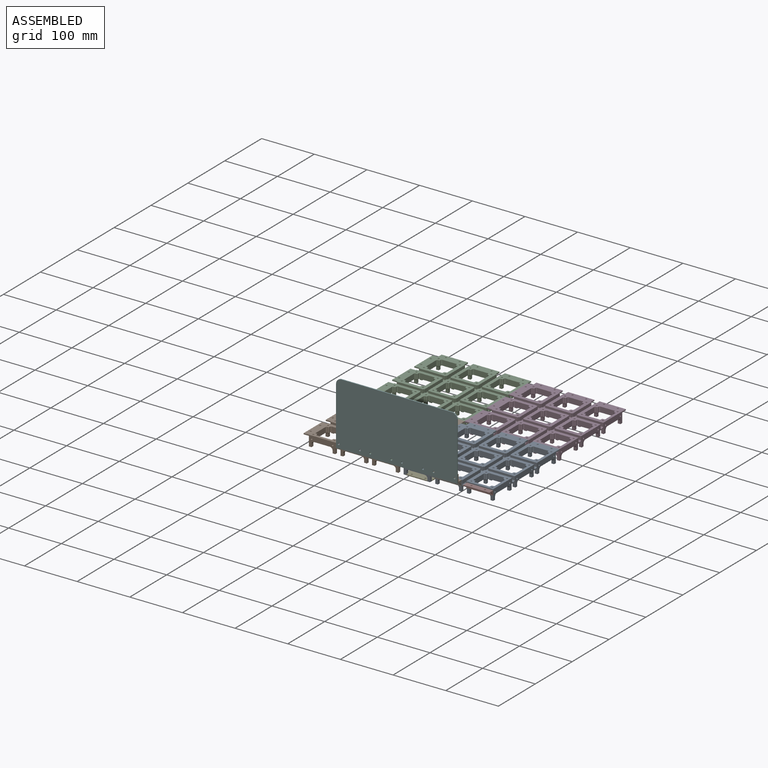
[diagram: assembled view]
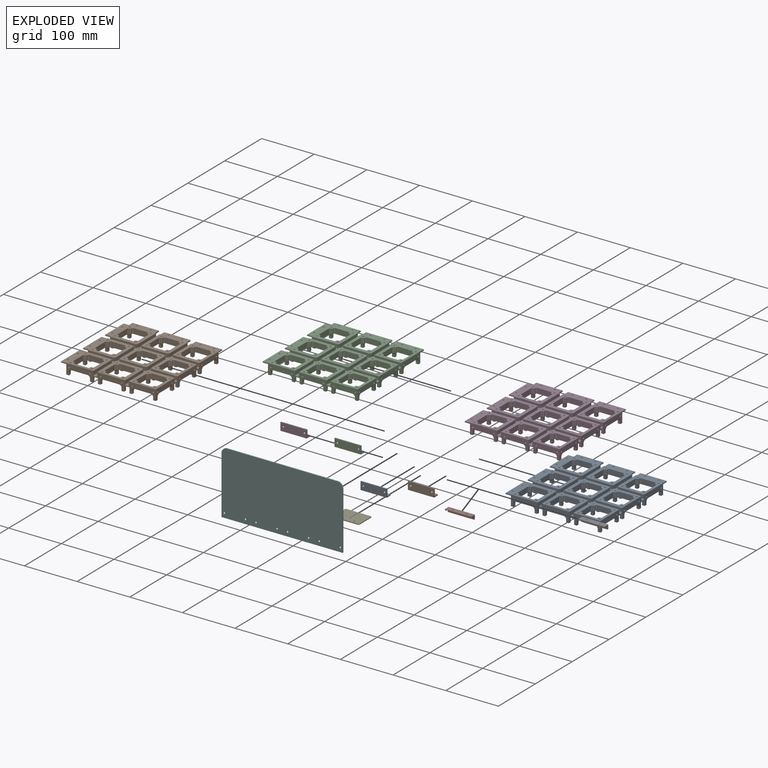
[diagram: exploded view]
GUIDED TOUR — FREECAD ASSEMBLY "BackplaneAssembled"

This assembly has 12 components, labeled P0..P11 below (a component is one placed body or linked part; the same part can appear more than once), held together by 0 modeled joints plus 27 derived contact edges. A joint is a constraint between two components; its type names the relative motion it leaves free:
  CONTACT — a derived adjacency edge — the two components touch in the source model (clearance under 2% of the assembly's diagonal); it is measured from the geometry, not a modeled constraint.
Axis/direction vectors are unit vectors and 'through' points are millimeter coordinates, both in the assembly's world frame.

MATES
  1. CONTACT "contact_0_1": P0 <-> P1, contact direction (1.000, 0.000, 0.000) through (55.00, -10.00, 18.00) mm (derived from contact, not a modeled constraint)
  2. CONTACT "contact_0_2": P0 <-> P2, contact direction (-1.000, 0.000, 0.000) through (-5.00, -10.00, 18.00) mm (derived from contact, not a modeled constraint)
  3. CONTACT "contact_0_5": P0 <-> P5, contact direction (0.000, -1.000, 0.000) through (5.73, -10.00, 24.52) mm (derived from contact, not a modeled constraint)
  4. CONTACT "contact_0_6": P0 <-> P6, contact direction (1.000, 0.000, 0.000) through (55.00, -10.00, 18.00) mm (derived from contact, not a modeled constraint)
  5. CONTACT "contact_0_8": P0 <-> P8, contact direction (0.000, 1.000, 0.000) through (0.00, 0.00, 18.00) mm (derived from contact, not a modeled constraint)
  6. CONTACT "contact_0_9": P0 <-> P9, contact direction (-1.000, 0.000, 0.000) through (-5.00, 0.00, 20.00) mm (derived from contact, not a modeled constraint)
  7. CONTACT "contact_1_5": P1 <-> P5, contact direction (0.000, -1.000, 0.000) through (110.00, -10.00, 18.00) mm (derived from contact, not a modeled constraint)
  8. CONTACT "contact_1_6": P1 <-> P6, contact direction (0.000, 0.000, -1.000) through (110.00, -10.00, 18.00) mm (derived from contact, not a modeled constraint)
  9. CONTACT "contact_1_7": P1 <-> P7, contact direction (1.000, 0.000, 0.000) through (115.00, -10.00, 18.00) mm (derived from contact, not a modeled constraint)
  10. CONTACT "contact_1_8": P1 <-> P8, contact direction (0.000, 1.000, 0.000) through (61.93, 0.00, 16.52) mm (derived from contact, not a modeled constraint)
  11. CONTACT "contact_2_3": P2 <-> P3, contact direction (-1.000, 0.000, 0.000) through (-65.00, -10.00, 18.00) mm (derived from contact, not a modeled constraint)
  12. CONTACT "contact_2_5": P2 <-> P5, contact direction (0.000, -1.000, 0.000) through (-14.27, -10.00, 24.52) mm (derived from contact, not a modeled constraint)
  13. CONTACT "contact_2_8": P2 <-> P8, contact direction (0.000, 0.000, -1.000) through (-10.00, 0.00, 18.00) mm (derived from contact, not a modeled constraint)
  14. CONTACT "contact_2_9": P2 <-> P9, contact direction (-0.334, 0.941, -0.060) through (-10.00, 0.00, 20.00) mm (derived from contact, not a modeled constraint)
  15. CONTACT "contact_3_5": P3 <-> P5, contact direction (0.000, -1.000, 0.000) through (-120.00, -10.00, 18.00) mm (derived from contact, not a modeled constraint)
  16. CONTACT "contact_3_9": P3 <-> P9, contact direction (0.000, 1.000, 0.000) through (-118.07, 0.00, 16.52) mm (derived from contact, not a modeled constraint)
  17. CONTACT "contact_4_8": P4 <-> P8, contact direction (0.000, 1.000, 0.000) through (0.00, 3.50, 3.30) mm (derived from contact, not a modeled constraint)
  18. CONTACT "contact_5_6": P5 <-> P6, contact direction (0.000, 1.000, 0.000) through (110.00, -10.00, 18.00) mm (derived from contact, not a modeled constraint)
  19. CONTACT "contact_5_7": P5 <-> P7, contact direction (1.000, 0.000, 0.000) through (115.00, -10.00, 18.00) mm (derived from contact, not a modeled constraint)
  20. CONTACT "contact_6_7": P6 <-> P7, contact direction (1.000, 0.000, 0.000) through (115.00, 0.00, 10.00) mm (derived from contact, not a modeled constraint)
  21. CONTACT "contact_6_8": P6 <-> P8, contact direction (0.000, 1.000, 0.000) through (66.62, 0.00, 14.00) mm (derived from contact, not a modeled constraint)
  22. CONTACT "contact_7_8": P7 <-> P8, contact direction (-0.334, 0.941, -0.060) through (123.69, 0.00, 13.04) mm (derived from contact, not a modeled constraint)
  23. CONTACT "contact_8_9": P8 <-> P9, contact direction (-1.000, 0.000, 0.000) through (-10.00, 0.00, 19.00) mm (derived from contact, not a modeled constraint)
  24. CONTACT "contact_8_11": P8 <-> P11, contact direction (0.000, 1.000, 0.000) through (50.00, 180.00, 19.00) mm (derived from contact, not a modeled constraint)
  25. CONTACT "contact_9_10": P9 <-> P10, contact direction (0.000, 1.000, 0.000) through (-130.00, 180.00, 19.00) mm (derived from contact, not a modeled constraint)
  26. CONTACT "contact_9_11": P9 <-> P11, contact direction (0.000, 0.000, 1.000) through (-10.00, 175.00, 19.00) mm (derived from contact, not a modeled constraint)
  27. CONTACT "contact_10_11": P10 <-> P11, contact direction (1.000, 0.000, 0.000) through (-10.00, 180.00, 19.00) mm (derived from contact, not a modeled constraint)

ASSEMBLY ORDER
  1. P11 — the base component [order verified]
  2. P8 [order verified]
  3. P6 [order verified]
  4. P1 [order verified]
  5. P0 [order verified]
  6. P7 [order verified]
  7. P2 [order verified]
  8. P3 [order verified]
  9. P10 [order verified]
  10. P9 [order verified]
  11. P4 [order verified]
  12. P5 [order verified]
Order-tag legend:
  [order verified] — this step's position reverses a verified removal order: the component was checked to insert without passing through the ones already placed.

Of the 12 components, 10 carry a construction recipe — the FreeCAD feature program (sketches with constraints, then the solid features that consume them) that regenerates the part from scratch, quoted from this document or from the linked companion document it references; the rest are supplied as boundary geometry only. The tour below walks the components in assembly order: each is shown spotlighted twice — in the assembled view, then in the exploded view, where a leader line traces a displaced component back to its assembled socket (components that stay in place when exploded have no leader line; saturated green if recipe-attached, orange if geometry-only; every other component desaturated gray) — followed by its recipe or geometry summary and the mates that hold it.
NOTE — document 2 of 6 of this assembly tour. The two overview renders and the header above are repeated from document 1; the component sections below continue where the previous document stopped.
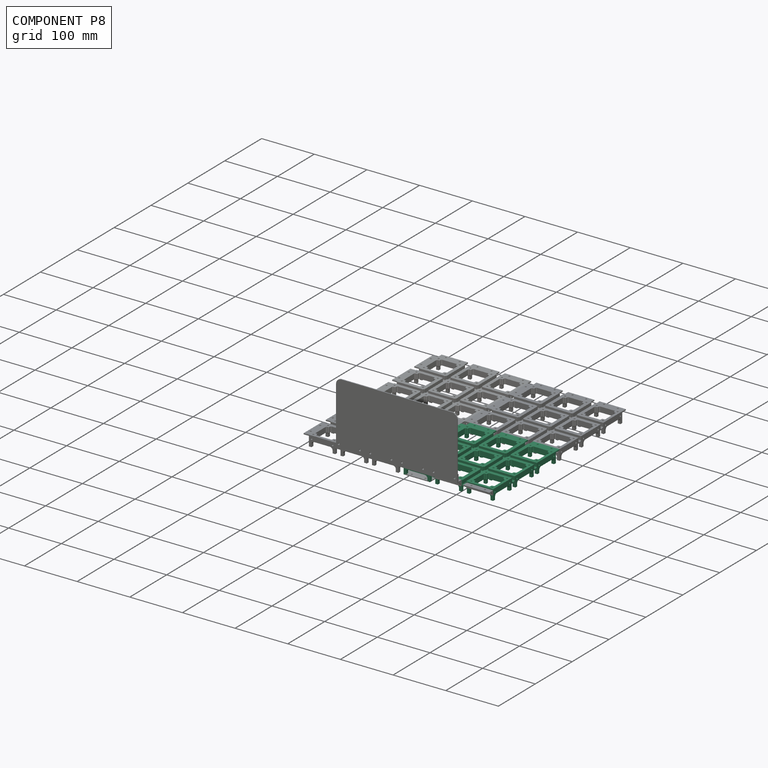
[diagram: component P8 — assembled]
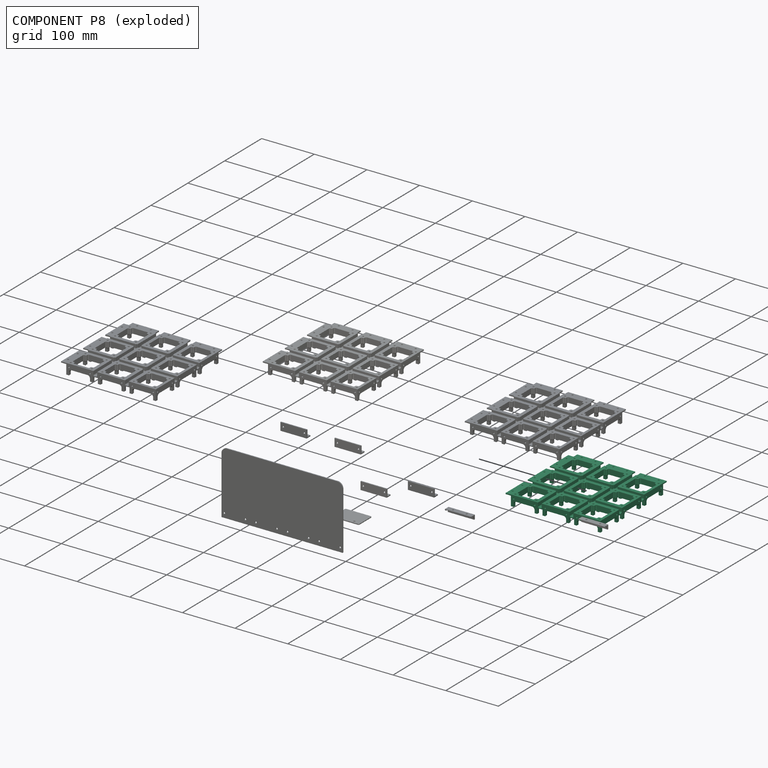
[diagram: component P8 — exploded]
COMPONENT P8 — recipe-attached ("Part", modeled in this document).
Held by: resting contact with P0 (derived edge); resting contact with P1 (derived edge); resting contact with P2 (derived edge); resting contact with P4 (derived edge); resting contact with P6 (derived edge); resting contact with P7 (derived edge); resting contact with P9 (derived edge); resting contact with P11 (derived edge).
Construction recipe (the document's own serialized feature program — sketch geometry with constraints, then the solid features built on it; lengths are millimeters unless a unit is written):

FEATURE [Sketcher::SketchObject] Sketch
  FullyConstrained = true
  MapMode = 5
  Placement = pos=(0,0,0) rot=(0.57735,0.57735,0.57735;2.0944rad)
  Support = -> [YZ_Plane001]
  sketch-geometry (4):
    g0: LineSegment StartX=0 StartY=0 StartZ=0 EndX=10 EndY=0 EndZ=0
    g1: LineSegment StartX=10 StartY=0 StartZ=0 EndX=10 EndY=10 EndZ=0
    g2: LineSegment StartX=10 StartY=10 StartZ=0 EndX=0 EndY=10 EndZ=0
    g3: LineSegment StartX=0 StartY=10 StartZ=0 EndX=0 EndY=0 EndZ=0
  constraints (11):
    c: Coincident(g0,g1)
    c: Coincident(g1,g2)
    c: Coincident(g2,g3)
    c: Coincident(g3,g0)
    c: Horizontal(g0)
    c: Horizontal(g2)
    c: Vertical(g1)
    c: Vertical(g3)
    c: Coincident(g0,g-1)
    c: DistanceY(g3,g3) = 10
    c: DistanceX(g2,g2) = 10
FEATURE [PartDesign::Pad] Pad
  Direction = (1,-2e-16,3e-16)
  Length = 50
  Length2 = 10
  Placement = pos=(0,0,0) rot=(0.57735,0.57735,0.57735;2.0944rad)
  Profile = -> Sketch
  ReferenceAxis = -> Sketch [N_Axis]
  Type = 0
FEATURE [Sketcher::SketchObject] Sketch001
  ExternalGeometry = -> [Pad]
  FullyConstrained = true
  MapMode = 5
  Placement = pos=(0,0,0) rot=(0.57735,0.57735,-0.57735;4.18879rad)
  Support = -> [Pad]
  sketch-geometry (6):
    g0: LineSegment StartX=8.5 StartY=-10 StartZ=0 EndX=8.5 EndY=-3.5 EndZ=0
    g1: LineSegment StartX=6.5 StartY=-1.5 StartZ=0 EndX=3.5 EndY=-1.5 EndZ=0
    g2: LineSegment StartX=1.5 StartY=-3.5 StartZ=0 EndX=1.5 EndY=-10 EndZ=0
    g3: ArcOfCircle CenterX=6.5 CenterY=-3.5 CenterZ=0 NormalX=0 NormalY=0 NormalZ=1 AngleXU=0 Radius=2 StartAngle=1e-16 EndAngle=1.5708
    g4: ArcOfCircle CenterX=3.5 CenterY=-3.5 CenterZ=0 NormalX=0 NormalY=0 NormalZ=1 AngleXU=0 Radius=2 StartAngle=1.5708 EndAngle=3.14159
    g5: LineSegment StartX=1.5 StartY=-10 StartZ=0 EndX=8.5 EndY=-10 EndZ=0
  constraints (16):
    c: PointOnObject(g0,g-3)
    c: Vertical(g0)
    c: Horizontal(g1)
    c: PointOnObject(g2,g-3)
    c: Vertical(g2)
    c: Tangent(g0,g3) = -1.5708
    c: Tangent(g1,g3) = -1.5708
    c: Tangent(g1,g4) = -1.5708
    c: Tangent(g2,g4) = -1.5708
    c: Radius(g4) = 2
    c: Radius(g3) = 2
    c: Distance(g2,g-5) = 1.5
    c: Distance(g0,g-4) = 1.5
    c: Distance(g1,g-6) = 1.5
    c: Coincident(g5,g2)
    c: Coincident(g5,g0)
FEATURE [PartDesign::Pocket] Pocket
  BaseFeature = -> Pad
  Direction = (1,-4e-16,4e-16)
  Length = 5
  Length2 = 5
  Placement = pos=(0,0,0) rot=(0.57735,0.57735,0.57735;2.0944rad)
  Profile = -> Sketch001
  ReferenceAxis = -> Sketch001 [N_Axis]
  Type = 1
FEATURE [PartDesign::Body] Body  label="BackplaneChannel"
  Group = -> [Sketch,Pad,Sketch001,Pocket]
  Origin = -> Origin001
  Placement = pos=(0,50,10) rot=(0,0,1;0rad)
  Tip = -> Pocket
FEATURE [Sketcher::SketchObject] Sketch002
  FullyConstrained = true
  MapMode = 5
  Support = -> [XY_Plane002]
  sketch-geometry (4):
    g0: LineSegment StartX=-25 StartY=25 StartZ=0 EndX=25 EndY=25 EndZ=0
    g1: LineSegment StartX=25 StartY=25 StartZ=0 EndX=25 EndY=-25 EndZ=0
    g2: LineSegment StartX=25 StartY=-25 StartZ=0 EndX=-25 EndY=-25 EndZ=0
    g3: LineSegment StartX=-25 StartY=-25 StartZ=0 EndX=-25 EndY=25 EndZ=0
  constraints (10):
    c: Coincident(g0,g1)
    c: Coincident(g1,g2)
    c: Coincident(g2,g3)
    c: Coincident(g3,g0)
    c: Horizontal(g0)
    c: Vertical(g3)
    c: Symmetric(g2,g1,g-2)
    c: Symmetric(g1,g0,g-1)
    c: DistanceY(g1,g1) = 50
    c: DistanceX(g2,g2) = 50
FEATURE [PartDesign::Pad] Pad001
  Direction = (0,0,1)
  Length = 20
  Length2 = 10
  Profile = -> Sketch002
  ReferenceAxis = -> Sketch002 [N_Axis]
  Type = 0
FEATURE [Sketcher::SketchObject] Sketch003
  ExternalGeometry = -> [Pad001]
  FullyConstrained = true
  MapMode = 5
  Placement = pos=(0,0,20) rot=(0,0,1;0rad)
  Support = -> [Pad001]
  sketch-geometry (36):
    g0: LineSegment StartX=-18 StartY=15 StartZ=0 EndX=-17 EndY=15 EndZ=0
    g1: LineSegment StartX=20 StartY=13 StartZ=0 EndX=20 EndY=-13 EndZ=0
    g2: LineSegment StartX=18 StartY=-15 StartZ=0 EndX=17 EndY=-15 EndZ=0
    g3: LineSegment StartX=-20 StartY=-13 StartZ=0 EndX=-20 EndY=13 EndZ=0
    g4: LineSegment StartX=-13 StartY=20 StartZ=0 EndX=13 EndY=20 EndZ=0
    g5: LineSegment StartX=15 StartY=18 StartZ=0 EndX=15 EndY=17 EndZ=0
    g6: LineSegment StartX=13 StartY=-20 StartZ=0 EndX=-13 EndY=-20 EndZ=0
    g7: LineSegment StartX=-15 StartY=-18 StartZ=0 EndX=-15 EndY=-17 EndZ=0
    g8: LineSegment StartX=17 StartY=15 StartZ=0 EndX=18 EndY=15 EndZ=0
    g9: LineSegment StartX=-15 StartY=17 StartZ=0 EndX=-15 EndY=18 EndZ=0
    g10: LineSegment StartX=-17 StartY=-15 StartZ=0 EndX=-18 EndY=-15 EndZ=0
    g11: LineSegment StartX=15 StartY=-17 StartZ=0 EndX=15 EndY=-18 EndZ=0
    g12: ArcOfCircle CenterX=-13 CenterY=-18 CenterZ=0 NormalX=0 NormalY=0 NormalZ=1 AngleXU=0 Radius=2 StartAngle=3.14159 EndAngle=4.71239
    g13: GeomPoint X=-15 Y=-20 Z=0
    g14: ArcOfCircle CenterX=13 CenterY=-18 CenterZ=0 NormalX=0 NormalY=0 NormalZ=1 AngleXU=0 Radius=2 StartAngle=4.71239 EndAngle=6.28319
    g15: GeomPoint X=15 Y=-20 Z=0
    g16: ArcOfCircle CenterX=17 CenterY=-17 CenterZ=0 NormalX=0 NormalY=0 NormalZ=1 AngleXU=0 Radius=2 StartAngle=1.5708 EndAngle=3.14159
    g17: GeomPoint X=15 Y=-15 Z=0
    g18: ArcOfCircle CenterX=18 CenterY=-13 CenterZ=0 NormalX=0 NormalY=0 NormalZ=1 AngleXU=0 Radius=2 StartAngle=4.71239 EndAngle=6.28319
    g19: GeomPoint X=20 Y=-15 Z=0
    g20: ArcOfCircle CenterX=18 CenterY=13 CenterZ=0 NormalX=0 NormalY=0 NormalZ=1 AngleXU=0 Radius=2 StartAngle=0 EndAngle=1.5708
    g21: GeomPoint X=20 Y=15 Z=0
    g22: ArcOfCircle CenterX=17 CenterY=17 CenterZ=0 NormalX=0 NormalY=0 NormalZ=1 AngleXU=0 Radius=2 StartAngle=3.14159 EndAngle=4.71239
    g23: GeomPoint X=15 Y=15 Z=0
    g24: ArcOfCircle CenterX=13 CenterY=18 CenterZ=0 NormalX=0 NormalY=0 NormalZ=1 AngleXU=0 Radius=2 StartAngle=4e-16 EndAngle=1.5708
    g25: GeomPoint X=15 Y=20 Z=0
    g26: ArcOfCircle CenterX=-13 CenterY=18 CenterZ=0 NormalX=0 NormalY=0 NormalZ=1 AngleXU=0 Radius=2 StartAngle=1.5708 EndAngle=3.14159
    g27: GeomPoint X=-15 Y=20 Z=0
    g28: ArcOfCircle CenterX=-17 CenterY=17 CenterZ=0 NormalX=0 NormalY=0 NormalZ=1 AngleXU=0 Radius=2 StartAngle=4.71239 EndAngle=6.28319
    g29: GeomPoint X=-15 Y=15 Z=0
    g30: ArcOfCircle CenterX=-18 CenterY=13 CenterZ=0 NormalX=0 NormalY=0 NormalZ=1 AngleXU=0 Radius=2 StartAngle=1.5708 EndAngle=3.14159
    g31: GeomPoint X=-20 Y=15 Z=0
    g32: ArcOfCircle CenterX=-18 CenterY=-13 CenterZ=0 NormalX=0 NormalY=0 NormalZ=1 AngleXU=0 Radius=2 StartAngle=3.14159 EndAngle=4.71239
    g33: GeomPoint X=-20 Y=-15 Z=0
    g34: ArcOfCircle CenterX=-17 CenterY=-17 CenterZ=0 NormalX=0 NormalY=0 NormalZ=1 AngleXU=0 Radius=2 StartAngle=0 EndAngle=1.5708
    g35: GeomPoint X=-15 Y=-15 Z=0
  constraints (80):
    c: Horizontal(g2)
    c: Vertical(g3)
    c: Symmetric(g21,g31,g-2)
    c: Symmetric(g21,g19,g-1)
    c: DistanceX(g31,g21) = 40
    c: DistanceY(g19,g21) = 30
    c: Horizontal(g4)
    c: Vertical(g7)
    c: Symmetric(g13,g15,g-2)
    c: Symmetric(g15,g25,g-1)
    c: DistanceY(g15,g25) = 40
    c: Vertical(g9)
    c: Vertical(g5)
    c: Vertical(g11)
    c: Horizontal(g10)
    c: Horizontal(g8)
    c: Horizontal(g0)
    c: DistanceX(g13,g15) = 30
    c: DistanceY(g33,g31) = 30
    c: DistanceX(g27,g25) = 30
    c: PointOnObject(g13,g7)
    c: PointOnObject(g13,g6)
    c: Tangent(g7,g12) = 1.5708
    c: Tangent(g6,g12) = 1.5708
    c: Radius(g12) = 2
    c: PointOnObject(g15,g11)
    c: PointOnObject(g15,g6)
    c: Tangent(g11,g14) = 1.5708
    c: Tangent(g6,g14) = 1.5708
    c: PointOnObject(g17,g11)
    c: PointOnObject(g17,g2)
    c: Tangent(g11,g16) = -1.5708
    c: Tangent(g2,g16) = -1.5708
    c: PointOnObject(g19,g2)
    c: PointOnObject(g19,g1)
    c: Tangent(g2,g18) = 1.5708
    c: Tangent(g1,g18) = 1.5708
    c: PointOnObject(g21,g1)
    c: PointOnObject(g21,g8)
    c: Tangent(g1,g20) = 1.5708
    c: Tangent(g8,g20) = 1.5708
    c: PointOnObject(g23,g8)
    c: PointOnObject(g23,g5)
    c: Tangent(g8,g22) = -1.5708
    c: Tangent(g5,g22) = -1.5708
    c: PointOnObject(g25,g5)
    c: PointOnObject(g25,g4)
    c: Tangent(g5,g24) = 1.5708
    c: Tangent(g4,g24) = 1.5708
    c: PointOnObject(g27,g9)
    c: PointOnObject(g27,g4)
    c: Tangent(g9,g26) = 1.5708
    c: Tangent(g4,g26) = 1.5708
    c: PointOnObject(g29,g9)
    c: PointOnObject(g29,g0)
    c: Tangent(g9,g28) = -1.5708
    c: Tangent(g0,g28) = -1.5708
    c: PointOnObject(g31,g0)
    c: PointOnObject(g31,g3)
    c: Tangent(g0,g30) = 1.5708
    c: Tangent(g3,g30) = 1.5708
    c: PointOnObject(g33,g3)
    c: PointOnObject(g33,g10)
    c: Tangent(g3,g32) = 1.5708
    c: Tangent(g10,g32) = 1.5708
    c: PointOnObject(g35,g10)
    c: PointOnObject(g35,g7)
    c: Tangent(g10,g34) = -1.5708
    c: Tangent(g7,g34) = -1.5708
    c: Radius(g34) = 2
    c: Radius(g32) = 2
    c: Radius(g30) = 2
    c: Radius(g28) = 2
    c: Radius(g26) = 2
    c: Radius(g24) = 2
    c: Radius(g22) = 2
    c: Radius(g20) = 2
    c: Radius(g18) = 2
    c: Radius(g16) = 2
    c: Radius(g14) = 2
FEATURE [PartDesign::Pocket] Pocket001
  BaseFeature = -> Pad001
  Direction = (0,0,-1)
  Length = 5
  Length2 = 5
  Profile = -> Sketch003
  ReferenceAxis = -> Sketch003 [N_Axis]
  Type = 1
FEATURE [Sketcher::SketchObject] Sketch004
  ExternalGeometry = -> [Pocket001]
  FullyConstrained = true
  MapMode = 5
  Placement = pos=(25,0,0) rot=(0.57735,0.57735,0.57735;2.0944rad)
  Support = -> [Pocket001]
  sketch-geometry (6):
    g0: LineSegment StartX=-15 StartY=10 StartZ=0 EndX=15 EndY=10 EndZ=0
    g1: LineSegment StartX=20 StartY=5 StartZ=0 EndX=20 EndY=0 EndZ=0
    g2: LineSegment StartX=20 StartY=0 StartZ=0 EndX=-20 EndY=0 EndZ=0
    g3: LineSegment StartX=-20 StartY=0 StartZ=0 EndX=-20 EndY=5 EndZ=0
    g4: ArcOfCircle CenterX=15 CenterY=5 CenterZ=0 NormalX=0 NormalY=0 NormalZ=1 AngleXU=0 Radius=5 StartAngle=1.11001e-11 EndAngle=1.5708
    g5: ArcOfCircle CenterX=-15 CenterY=5 CenterZ=0 NormalX=0 NormalY=0 NormalZ=1 AngleXU=0 Radius=5 StartAngle=1.5708 EndAngle=3.14159
  constraints (15):
    c: Coincident(g1,g2)
    c: Coincident(g2,g3)
    c: Vertical(g1)
    c: Vertical(g3)
    c: PointOnObject(g1,g-1)
    c: Tangent(g1,g4) = 1.5708
    c: Tangent(g0,g4) = 1.5708
    c: Tangent(g0,g5) = 1.5708
    c: Tangent(g3,g5) = 1.5708
    c: Horizontal(g0)
    c: DistanceX(g2,g2) = 40
    c: Symmetric(g2,g1,g-2)
    c: Distance(g-1,g0) = 10
    c: Radius(g5) = 5
    c: Radius(g4) = 5
FEATURE [PartDesign::Pocket] Pocket002
  BaseFeature = -> Pocket001
  Direction = (-1,0,0)
  Length = 5
  Length2 = 5
  Profile = -> Sketch004
  ReferenceAxis = -> Sketch004 [N_Axis]
  Type = 1
FEATURE [Sketcher::SketchObject] Sketch005
  FullyConstrained = true
  MapMode = 5
  Placement = pos=(0,-25,0) rot=(1,0,0;1.5708rad)
  Support = -> [Pocket001]
  sketch-geometry (6):
    g0: LineSegment StartX=-15 StartY=10 StartZ=0 EndX=15 EndY=10 EndZ=0
    g1: LineSegment StartX=20 StartY=5 StartZ=0 EndX=20 EndY=0 EndZ=0
    g2: LineSegment StartX=20 StartY=0 StartZ=0 EndX=-20 EndY=0 EndZ=0
    g3: LineSegment StartX=-20 StartY=0 StartZ=0 EndX=-20 EndY=5 EndZ=0
    g4: ArcOfCircle CenterX=15 CenterY=5 CenterZ=0 NormalX=0 NormalY=0 NormalZ=1 AngleXU=0 Radius=5 StartAngle=1.11e-11 EndAngle=1.5708
    g5: ArcOfCircle CenterX=-15 CenterY=5 CenterZ=0 NormalX=0 NormalY=0 NormalZ=1 AngleXU=0 Radius=5 StartAngle=1.5708 EndAngle=3.14159
  constraints (15):
    c: Coincident(g1,g2)
    c: Coincident(g2,g3)
    c: Horizontal(g0)
    c: Vertical(g1)
    c: Vertical(g3)
    c: Symmetric(g2,g1,g-2)
    c: PointOnObject(g1,g-1)
    c: Tangent(g0,g4) = 1.5708
    c: Tangent(g1,g4) = 1.5708
    c: Tangent(g0,g5) = 1.5708
    c: Tangent(g3,g5) = 1.5708
    c: DistanceX(g2,g2) = 40
    c: Distance(g-1,g0) = 10
    c: Radius(g5) = 5
    c: Radius(g4) = 5
FEATURE [PartDesign::Pocket] Pocket003
  BaseFeature = -> Pocket002
  Direction = (0,1,-2e-16)
  Length = 5
  Length2 = 5
  Profile = -> Sketch005
  ReferenceAxis = -> Sketch005 [N_Axis]
  Type = 1
FEATURE [Sketcher::SketchObject] Sketch009
  FullyConstrained = false
  MapMode = 5
  Placement = pos=(0,0,20) rot=(0,0,1;0rad)
  sketch-geometry (4):
    g0: Circle CenterX=-20 CenterY=20 CenterZ=0 NormalX=0 NormalY=0 NormalZ=1 AngleXU=0 Radius=1.55
    g1: Circle CenterX=20 CenterY=20 CenterZ=0 NormalX=0 NormalY=0 NormalZ=1 AngleXU=0 Radius=1.55
    g2: Circle CenterX=20 CenterY=-20 CenterZ=0 NormalX=0 NormalY=0 NormalZ=1 AngleXU=0 Radius=1.55
    g3: Circle CenterX=-20 CenterY=-20 CenterZ=0 NormalX=0 NormalY=0 NormalZ=1 AngleXU=0 Radius=1.55
  constraints (4):
    c: Diameter(g0) = 3.1
    c: Diameter(g1) = 3.1
    c: Diameter(g2) = 3.1
    c: Diameter(g3) = 3.1
FEATURE [PartDesign::Pocket] Pocket008
  BaseFeature = -> Pocket003
  Direction = (0,0,-1)
  Length = 5
  Length2 = 5
  Profile = -> Sketch009
  ReferenceAxis = -> Sketch009 [N_Axis]
  Type = 0
FEATURE [Sketcher::SketchObject] Sketch010
  FullyConstrained = true
  MapMode = 5
  Support = -> [XY_Plane003]
  sketch-geometry (4):
    g0: LineSegment StartX=-25 StartY=25 StartZ=0 EndX=25 EndY=25 EndZ=0
    g1: LineSegment StartX=25 StartY=25 StartZ=0 EndX=25 EndY=-25 EndZ=0
    g2: LineSegment StartX=25 StartY=-25 StartZ=0 EndX=-25 EndY=-25 EndZ=0
    g3: LineSegment StartX=-25 StartY=-25 StartZ=0 EndX=-25 EndY=25 EndZ=0
  constraints (10):
    c: Coincident(g0,g1)
    c: Coincident(g1,g2)
    c: Coincident(g2,g3)
    c: Coincident(g3,g0)
    c: Horizontal(g0)
    c: Vertical(g3)
    c: Symmetric(g2,g1,g-2)
    c: Symmetric(g1,g0,g-1)
    c: DistanceY(g1,g1) = 50
    c: DistanceX(g2,g2) = 50
FEATURE [PartDesign::Pad] Pad002
  Direction = (0,0,1)
  Length = 20
  Length2 = 10
  Profile = -> Sketch010
  ReferenceAxis = -> Sketch010 [N_Axis]
  Type = 0
FEATURE [Sketcher::SketchObject] Sketch011
  ExternalGeometry = -> [Pad002]
  FullyConstrained = true
  MapMode = 5
  Placement = pos=(0,0,20) rot=(0,0,1;0rad)
  Support = -> [Pad002]
  sketch-geometry (36):
    g0: LineSegment StartX=-18 StartY=15 StartZ=0 EndX=-17 EndY=15 EndZ=0
    g1: LineSegment StartX=20 StartY=13 StartZ=0 EndX=20 EndY=-13 EndZ=0
    g2: LineSegment StartX=18 StartY=-15 StartZ=0 EndX=17 EndY=-15 EndZ=0
    g3: LineSegment StartX=-20 StartY=-13 StartZ=0 EndX=-20 EndY=13 EndZ=0
    g4: LineSegment StartX=-13 StartY=20 StartZ=0 EndX=13 EndY=20 EndZ=0
    g5: LineSegment StartX=15 StartY=18 StartZ=0 EndX=15 EndY=17 EndZ=0
    g6: LineSegment StartX=13 StartY=-20 StartZ=0 EndX=-13 EndY=-20 EndZ=0
    g7: LineSegment StartX=-15 StartY=-18 StartZ=0 EndX=-15 EndY=-17 EndZ=0
    g8: LineSegment StartX=17 StartY=15 StartZ=0 EndX=18 EndY=15 EndZ=0
    g9: LineSegment StartX=-15 StartY=17 StartZ=0 EndX=-15 EndY=18 EndZ=0
    g10: LineSegment StartX=-17 StartY=-15 StartZ=0 EndX=-18 EndY=-15 EndZ=0
    g11: LineSegment StartX=15 StartY=-17 StartZ=0 EndX=15 EndY=-18 EndZ=0
    g12: ArcOfCircle CenterX=-13 CenterY=-18 CenterZ=0 NormalX=0 NormalY=0 NormalZ=1 AngleXU=0 Radius=2 StartAngle=3.14159 EndAngle=4.71239
    g13: GeomPoint X=-15 Y=-20 Z=0
    g14: ArcOfCircle CenterX=13 CenterY=-18 CenterZ=0 NormalX=0 NormalY=0 NormalZ=1 AngleXU=0 Radius=2 StartAngle=4.71239 EndAngle=6.28319
    g15: GeomPoint X=15 Y=-20 Z=0
    g16: ArcOfCircle CenterX=17 CenterY=-17 CenterZ=0 NormalX=0 NormalY=0 NormalZ=1 AngleXU=0 Radius=2 StartAngle=1.5708 EndAngle=3.14159
    g17: GeomPoint X=15 Y=-15 Z=0
    g18: ArcOfCircle CenterX=18 CenterY=-13 CenterZ=0 NormalX=0 NormalY=0 NormalZ=1 AngleXU=0 Radius=2 StartAngle=4.71239 EndAngle=6.28319
    g19: GeomPoint X=20 Y=-15 Z=0
    g20: ArcOfCircle CenterX=18 CenterY=13 CenterZ=0 NormalX=0 NormalY=0 NormalZ=1 AngleXU=0 Radius=2 StartAngle=0 EndAngle=1.5708
    g21: GeomPoint X=20 Y=15 Z=0
    g22: ArcOfCircle CenterX=17 CenterY=17 CenterZ=0 NormalX=0 NormalY=0 NormalZ=1 AngleXU=0 Radius=2 StartAngle=3.14159 EndAngle=4.71239
    g23: GeomPoint X=15 Y=15 Z=0
    g24: ArcOfCircle CenterX=13 CenterY=18 CenterZ=0 NormalX=0 NormalY=0 NormalZ=1 AngleXU=0 Radius=2 StartAngle=4e-16 EndAngle=1.5708
    g25: GeomPoint X=15 Y=20 Z=0
    g26: ArcOfCircle CenterX=-13 CenterY=18 CenterZ=0 NormalX=0 NormalY=0 NormalZ=1 AngleXU=0 Radius=2 StartAngle=1.5708 EndAngle=3.14159
    g27: GeomPoint X=-15 Y=20 Z=0
    g28: ArcOfCircle CenterX=-17 CenterY=17 CenterZ=0 NormalX=0 NormalY=0 NormalZ=1 AngleXU=0 Radius=2 StartAngle=4.71239 EndAngle=6.28319
    g29: GeomPoint X=-15 Y=15 Z=0
    g30: ArcOfCircle CenterX=-18 CenterY=13 CenterZ=0 NormalX=0 NormalY=0 NormalZ=1 AngleXU=0 Radius=2 StartAngle=1.5708 EndAngle=3.14159
    g31: GeomPoint X=-20 Y=15 Z=0
    g32: ArcOfCircle CenterX=-18 CenterY=-13 CenterZ=0 NormalX=0 NormalY=0 NormalZ=1 AngleXU=0 Radius=2 StartAngle=3.14159 EndAngle=4.71239
    g33: GeomPoint X=-20 Y=-15 Z=0
    g34: ArcOfCircle CenterX=-17 CenterY=-17 CenterZ=0 NormalX=0 NormalY=0 NormalZ=1 AngleXU=0 Radius=2 StartAngle=0 EndAngle=1.5708
    g35: GeomPoint X=-15 Y=-15 Z=0
  constraints (80):
    c: Horizontal(g2)
    c: Vertical(g3)
    c: Symmetric(g21,g31,g-2)
    c: Symmetric(g21,g19,g-1)
    c: DistanceX(g31,g21) = 40
    c: DistanceY(g19,g21) = 30
    c: Horizontal(g4)
    c: Vertical(g7)
    c: Symmetric(g13,g15,g-2)
    c: Symmetric(g15,g25,g-1)
    c: DistanceY(g15,g25) = 40
    c: Vertical(g9)
    c: Vertical(g5)
    c: Vertical(g11)
    c: Horizontal(g10)
    c: Horizontal(g8)
    c: Horizontal(g0)
    c: DistanceX(g13,g15) = 30
    c: DistanceY(g33,g31) = 30
    c: DistanceX(g27,g25) = 30
    c: PointOnObject(g13,g7)
    c: PointOnObject(g13,g6)
    c: Tangent(g7,g12) = 1.5708
    c: Tangent(g6,g12) = 1.5708
    c: Radius(g12) = 2
    c: PointOnObject(g15,g11)
    c: PointOnObject(g15,g6)
    c: Tangent(g11,g14) = 1.5708
    c: Tangent(g6,g14) = 1.5708
    c: PointOnObject(g17,g11)
    c: PointOnObject(g17,g2)
    c: Tangent(g11,g16) = -1.5708
    c: Tangent(g2,g16) = -1.5708
    c: PointOnObject(g19,g2)
    c: PointOnObject(g19,g1)
    c: Tangent(g2,g18) = 1.5708
    c: Tangent(g1,g18) = 1.5708
    c: PointOnObject(g21,g1)
    c: PointOnObject(g21,g8)
    c: Tangent(g1,g20) = 1.5708
    c: Tangent(g8,g20) = 1.5708
    c: PointOnObject(g23,g8)
    c: PointOnObject(g23,g5)
    c: Tangent(g8,g22) = -1.5708
    c: Tangent(g5,g22) = -1.5708
    c: PointOnObject(g25,g5)
    c: PointOnObject(g25,g4)
    c: Tangent(g5,g24) = 1.5708
    c: Tangent(g4,g24) = 1.5708
    c: PointOnObject(g27,g9)
    c: PointOnObject(g27,g4)
    c: Tangent(g9,g26) = 1.5708
    c: Tangent(g4,g26) = 1.5708
    c: PointOnObject(g29,g9)
    c: PointOnObject(g29,g0)
    c: Tangent(g9,g28) = -1.5708
    c: Tangent(g0,g28) = -1.5708
    c: PointOnObject(g31,g0)
    c: PointOnObject(g31,g3)
    c: Tangent(g0,g30) = 1.5708
    c: Tangent(g3,g30) = 1.5708
    c: PointOnObject(g33,g3)
    c: PointOnObject(g33,g10)
    c: Tangent(g3,g32) = 1.5708
    c: Tangent(g10,g32) = 1.5708
    c: PointOnObject(g35,g10)
    c: PointOnObject(g35,g7)
    c: Tangent(g10,g34) = -1.5708
    c: Tangent(g7,g34) = -1.5708
    c: Radius(g34) = 2
    c: Radius(g32) = 2
    c: Radius(g30) = 2
    c: Radius(g28) = 2
    c: Radius(g26) = 2
    c: Radius(g24) = 2
    c: Radius(g22) = 2
    c: Radius(g20) = 2
    c: Radius(g18) = 2
    c: Radius(g16) = 2
    c: Radius(g14) = 2
FEATURE [PartDesign::Pocket] Pocket009
  BaseFeature = -> Pad002
  Direction = (0,0,-1)
  Length = 5
  Length2 = 5
  Profile = -> Sketch011
  ReferenceAxis = -> Sketch011 [N_Axis]
  Type = 1
FEATURE [Sketcher::SketchObject] Sketch012
  ExternalGeometry = -> [Pocket009]
  FullyConstrained = true
  MapMode = 5
  Placement = pos=(25,0,0) rot=(0.57735,0.57735,0.57735;2.0944rad)
  Support = -> [Pocket009]
  sketch-geometry (6):
    g0: LineSegment StartX=-15 StartY=10 StartZ=0 EndX=15 EndY=10 EndZ=0
    g1: LineSegment StartX=20 StartY=5 StartZ=0 EndX=20 EndY=0 EndZ=0
    g2: LineSegment StartX=20 StartY=0 StartZ=0 EndX=-20 EndY=0 EndZ=0
    g3: LineSegment StartX=-20 StartY=0 StartZ=0 EndX=-20 EndY=5 EndZ=0
    g4: ArcOfCircle CenterX=15 CenterY=5 CenterZ=0 NormalX=0 NormalY=0 NormalZ=1 AngleXU=0 Radius=5 StartAngle=1.11001e-11 EndAngle=1.5708
    g5: ArcOfCircle CenterX=-15 CenterY=5 CenterZ=0 NormalX=0 NormalY=0 NormalZ=1 AngleXU=0 Radius=5 StartAngle=1.5708 EndAngle=3.14159
  constraints (15):
    c: Coincident(g1,g2)
    c: Coincident(g2,g3)
    c: Vertical(g1)
    c: Vertical(g3)
    c: PointOnObject(g1,g-1)
    c: Tangent(g1,g4) = 1.5708
    c: Tangent(g0,g4) = 1.5708
    c: Tangent(g0,g5) = 1.5708
    c: Tangent(g3,g5) = 1.5708
    c: Horizontal(g0)
    c: DistanceX(g2,g2) = 40
    c: Symmetric(g2,g1,g-2)
    c: Distance(g-1,g0) = 10
    c: Radius(g5) = 5
    c: Radius(g4) = 5
FEATURE [PartDesign::Pocket] Pocket010
  BaseFeature = -> Pocket009
  Direction = (-1,0,0)
  Length = 5
  Length2 = 5
  Profile = -> Sketch012
  ReferenceAxis = -> Sketch012 [N_Axis]
  Type = 1
FEATURE [Sketcher::SketchObject] Sketch013
  FullyConstrained = true
  MapMode = 5
  Placement = pos=(0,-25,0) rot=(1,0,0;1.5708rad)
  Support = -> [Pocket009]
  sketch-geometry (6):
    g0: LineSegment StartX=-15 StartY=10 StartZ=0 EndX=15 EndY=10 EndZ=0
    g1: LineSegment StartX=20 StartY=5 StartZ=0 EndX=20 EndY=0 EndZ=0
    g2: LineSegment StartX=20 StartY=0 StartZ=0 EndX=-20 EndY=0 EndZ=0
    g3: LineSegment StartX=-20 StartY=0 StartZ=0 EndX=-20 EndY=5 EndZ=0
    g4: ArcOfCircle CenterX=15 CenterY=5 CenterZ=0 NormalX=0 NormalY=0 NormalZ=1 AngleXU=0 Radius=5 StartAngle=1.11e-11 EndAngle=1.5708
    g5: ArcOfCircle CenterX=-15 CenterY=5 CenterZ=0 NormalX=0 NormalY=0 NormalZ=1 AngleXU=0 Radius=5 StartAngle=1.5708 EndAngle=3.14159
  constraints (15):
    c: Coincident(g1,g2)
    c: Coincident(g2,g3)
    c: Horizontal(g0)
    c: Vertical(g1)
    c: Vertical(g3)
    c: Symmetric(g2,g1,g-2)
    c: PointOnObject(g1,g-1)
    c: Tangent(g0,g4) = 1.5708
    c: Tangent(g1,g4) = 1.5708
    c: Tangent(g0,g5) = 1.5708
    c: Tangent(g3,g5) = 1.5708
    c: DistanceX(g2,g2) = 40
    c: Distance(g-1,g0) = 10
    c: Radius(g5) = 5
    c: Radius(g4) = 5
FEATURE [PartDesign::Pocket] Pocket011
  BaseFeature = -> Pocket010
  Direction = (0,1,-2e-16)
  Length = 5
  Length2 = 5
  Profile = -> Sketch013
  ReferenceAxis = -> Sketch013 [N_Axis]
  Type = 1
FEATURE [Sketcher::SketchObject] Sketch014
  FullyConstrained = false
  MapMode = 5
  Placement = pos=(0,0,20) rot=(0,0,1;0rad)
  sketch-geometry (4):
    g0: Circle CenterX=-20 CenterY=20 CenterZ=0 NormalX=0 NormalY=0 NormalZ=1 AngleXU=0 Radius=1.55
    g1: Circle CenterX=20 CenterY=20 CenterZ=0 NormalX=0 NormalY=0 NormalZ=1 AngleXU=0 Radius=1.55
    g2: Circle CenterX=20 CenterY=-20 CenterZ=0 NormalX=0 NormalY=0 NormalZ=1 AngleXU=0 Radius=1.55
    g3: Circle CenterX=-20 CenterY=-20 CenterZ=0 NormalX=0 NormalY=0 NormalZ=1 AngleXU=0 Radius=1.55
  constraints (4):
    c: Diameter(g0) = 3.1
    c: Diameter(g1) = 3.1
    c: Diameter(g2) = 3.1
    c: Diameter(g3) = 3.1
FEATURE [PartDesign::Pocket] Pocket012
  BaseFeature = -> Pocket011
  Direction = (0,0,-1)
  Length = 5
  Length2 = 5
  Profile = -> Sketch014
  ReferenceAxis = -> Sketch014 [N_Axis]
  Type = 0
FEATURE [PartDesign::Body] Body003  label="BackplaneBlock001"
  Group = -> [Sketch010,Pad002,Sketch011,Pocket009,Sketch012,Sketch013,Pocket010,Pocket011,Sketch014,Pocket012]
  Origin = -> Origin003
  Placement = pos=(85,85,0) rot=(0,0,1;0rad)
  Tip = -> Pocket012
FEATURE [Sketcher::SketchObject] Sketch015
  ExternalGeometry = -> [Pocket008]
  FullyConstrained = true
  MapMode = 5
  Placement = pos=(0,-25,0) rot=(1,0,0;1.5708rad)
  Support = -> [Pocket008]
  sketch-geometry (2):
    g0: Circle CenterX=-20 CenterY=14 CenterZ=0 NormalX=0 NormalY=0 NormalZ=1 AngleXU=0 Radius=1.55
    g1: Circle CenterX=20 CenterY=14 CenterZ=0 NormalX=0 NormalY=0 NormalZ=1 AngleXU=0 Radius=1.55
  constraints (6):
    c: Diameter(g0) = 3.1
    c: Diameter(g1) = 3.1
    c: Distance(g0,g-5) = 5
    c: Distance(g0,g-3) = 6
    c: Distance(g1,g-3) = 6
    c: Distance(g1,g-4) = 5
FEATURE [PartDesign::Pocket] Pocket013
  BaseFeature = -> Pocket008
  Direction = (0,1,-2e-16)
  Length = 3
  Length2 = 5
  Profile = -> Sketch015
  ReferenceAxis = -> Sketch015 [N_Axis]
  Type = 0
FEATURE [Sketcher::SketchObject] Sketch016
  FullyConstrained = true
  MapMode = 5
  Support = -> [XY_Plane004]
  sketch-geometry (4):
    g0: LineSegment StartX=-25 StartY=25 StartZ=0 EndX=25 EndY=25 EndZ=0
    g1: LineSegment StartX=25 StartY=25 StartZ=0 EndX=25 EndY=-25 EndZ=0
    g2: LineSegment StartX=25 StartY=-25 StartZ=0 EndX=-25 EndY=-25 EndZ=0
    g3: LineSegment StartX=-25 StartY=-25 StartZ=0 EndX=-25 EndY=25 EndZ=0
  constraints (10):
    c: Coincident(g0,g1)
    c: Coincident(g1,g2)
    c: Coincident(g2,g3)
    c: Coincident(g3,g0)
    c: Horizontal(g0)
    c: Vertical(g3)
    c: Symmetric(g2,g1,g-2)
    c: Symmetric(g1,g0,g-1)
    c: DistanceY(g1,g1) = 50
    c: DistanceX(g2,g2) = 50
FEATURE [PartDesign::Pad] Pad003
  Direction = (0,0,1)
  Length = 20
  Length2 = 10
  Profile = -> Sketch016
  ReferenceAxis = -> Sketch016 [N_Axis]
  Type = 0
FEATURE [Sketcher::SketchObject] Sketch017
  ExternalGeometry = -> [Pad003]
  FullyConstrained = true
  MapMode = 5
  Placement = pos=(0,0,20) rot=(0,0,1;0rad)
  Support = -> [Pad003]
  sketch-geometry (36):
    g0: LineSegment StartX=-18 StartY=15 StartZ=0 EndX=-17 EndY=15 EndZ=0
    g1: LineSegment StartX=20 StartY=13 StartZ=0 EndX=20 EndY=-13 EndZ=0
    g2: LineSegment StartX=18 StartY=-15 StartZ=0 EndX=17 EndY=-15 EndZ=0
    g3: LineSegment StartX=-20 StartY=-13 StartZ=0 EndX=-20 EndY=13 EndZ=0
    g4: LineSegment StartX=-13 StartY=20 StartZ=0 EndX=13 EndY=20 EndZ=0
    g5: LineSegment StartX=15 StartY=18 StartZ=0 EndX=15 EndY=17 EndZ=0
    g6: LineSegment StartX=13 StartY=-20 StartZ=0 EndX=-13 EndY=-20 EndZ=0
    g7: LineSegment StartX=-15 StartY=-18 StartZ=0 EndX=-15 EndY=-17 EndZ=0
    g8: LineSegment StartX=17 StartY=15 StartZ=0 EndX=18 EndY=15 EndZ=0
    g9: LineSegment StartX=-15 StartY=17 StartZ=0 EndX=-15 EndY=18 EndZ=0
    g10: LineSegment StartX=-17 StartY=-15 StartZ=0 EndX=-18 EndY=-15 EndZ=0
    g11: LineSegment StartX=15 StartY=-17 StartZ=0 EndX=15 EndY=-18 EndZ=0
    g12: ArcOfCircle CenterX=-13 CenterY=-18 CenterZ=0 NormalX=0 NormalY=0 NormalZ=1 AngleXU=0 Radius=2 StartAngle=3.14159 EndAngle=4.71239
    g13: GeomPoint X=-15 Y=-20 Z=0
    g14: ArcOfCircle CenterX=13 CenterY=-18 CenterZ=0 NormalX=0 NormalY=0 NormalZ=1 AngleXU=0 Radius=2 StartAngle=4.71239 EndAngle=6.28319
    g15: GeomPoint X=15 Y=-20 Z=0
    g16: ArcOfCircle CenterX=17 CenterY=-17 CenterZ=0 NormalX=0 NormalY=0 NormalZ=1 AngleXU=0 Radius=2 StartAngle=1.5708 EndAngle=3.14159
    g17: GeomPoint X=15 Y=-15 Z=0
    g18: ArcOfCircle CenterX=18 CenterY=-13 CenterZ=0 NormalX=0 NormalY=0 NormalZ=1 AngleXU=0 Radius=2 StartAngle=4.71239 EndAngle=6.28319
    g19: GeomPoint X=20 Y=-15 Z=0
    g20: ArcOfCircle CenterX=18 CenterY=13 CenterZ=0 NormalX=0 NormalY=0 NormalZ=1 AngleXU=0 Radius=2 StartAngle=0 EndAngle=1.5708
    g21: GeomPoint X=20 Y=15 Z=0
    g22: ArcOfCircle CenterX=17 CenterY=17 CenterZ=0 NormalX=0 NormalY=0 NormalZ=1 AngleXU=0 Radius=2 StartAngle=3.14159 EndAngle=4.71239
    g23: GeomPoint X=15 Y=15 Z=0
    g24: ArcOfCircle CenterX=13 CenterY=18 CenterZ=0 NormalX=0 NormalY=0 NormalZ=1 AngleXU=0 Radius=2 StartAngle=4e-16 EndAngle=1.5708
    g25: GeomPoint X=15 Y=20 Z=0
    g26: ArcOfCircle CenterX=-13 CenterY=18 CenterZ=0 NormalX=0 NormalY=0 NormalZ=1 AngleXU=0 Radius=2 StartAngle=1.5708 EndAngle=3.14159
    g27: GeomPoint X=-15 Y=20 Z=0
    g28: ArcOfCircle CenterX=-17 CenterY=17 CenterZ=0 NormalX=0 NormalY=0 NormalZ=1 AngleXU=0 Radius=2 StartAngle=4.71239 EndAngle=6.28319
    g29: GeomPoint X=-15 Y=15 Z=0
    g30: ArcOfCircle CenterX=-18 CenterY=13 CenterZ=0 NormalX=0 NormalY=0 NormalZ=1 AngleXU=0 Radius=2 StartAngle=1.5708 EndAngle=3.14159
    g31: GeomPoint X=-20 Y=15 Z=0
    g32: ArcOfCircle CenterX=-18 CenterY=-13 CenterZ=0 NormalX=0 NormalY=0 NormalZ=1 AngleXU=0 Radius=2 StartAngle=3.14159 EndAngle=4.71239
    g33: GeomPoint X=-20 Y=-15 Z=0
    g34: ArcOfCircle CenterX=-17 CenterY=-17 CenterZ=0 NormalX=0 NormalY=0 NormalZ=1 AngleXU=0 Radius=2 StartAngle=0 EndAngle=1.5708
    g35: GeomPoint X=-15 Y=-15 Z=0
  constraints (80):
    c: Horizontal(g2)
    c: Vertical(g3)
    c: Symmetric(g21,g31,g-2)
    c: Symmetric(g21,g19,g-1)
    c: DistanceX(g31,g21) = 40
    c: DistanceY(g19,g21) = 30
    c: Horizontal(g4)
    c: Vertical(g7)
    c: Symmetric(g13,g15,g-2)
    c: Symmetric(g15,g25,g-1)
    c: DistanceY(g15,g25) = 40
    c: Vertical(g9)
    c: Vertical(g5)
    c: Vertical(g11)
    c: Horizontal(g10)
    c: Horizontal(g8)
    c: Horizontal(g0)
    c: DistanceX(g13,g15) = 30
    c: DistanceY(g33,g31) = 30
    c: DistanceX(g27,g25) = 30
    c: PointOnObject(g13,g7)
    c: PointOnObject(g13,g6)
    c: Tangent(g7,g12) = 1.5708
    c: Tangent(g6,g12) = 1.5708
    c: Radius(g12) = 2
    c: PointOnObject(g15,g11)
    c: PointOnObject(g15,g6)
    c: Tangent(g11,g14) = 1.5708
    c: Tangent(g6,g14) = 1.5708
    c: PointOnObject(g17,g11)
    c: PointOnObject(g17,g2)
    c: Tangent(g11,g16) = -1.5708
    c: Tangent(g2,g16) = -1.5708
    c: PointOnObject(g19,g2)
    c: PointOnObject(g19,g1)
    c: Tangent(g2,g18) = 1.5708
    c: Tangent(g1,g18) = 1.5708
    c: PointOnObject(g21,g1)
    c: PointOnObject(g21,g8)
    c: Tangent(g1,g20) = 1.5708
    c: Tangent(g8,g20) = 1.5708
    c: PointOnObject(g23,g8)
    c: PointOnObject(g23,g5)
    c: Tangent(g8,g22) = -1.5708
    c: Tangent(g5,g22) = -1.5708
    c: PointOnObject(g25,g5)
    c: PointOnObject(g25,g4)
    c: Tangent(g5,g24) = 1.5708
    c: Tangent(g4,g24) = 1.5708
    c: PointOnObject(g27,g9)
    c: PointOnObject(g27,g4)
    c: Tangent(g9,g26) = 1.5708
    c: Tangent(g4,g26) = 1.5708
    c: PointOnObject(g29,g9)
    c: PointOnObject(g29,g0)
    c: Tangent(g9,g28) = -1.5708
    c: Tangent(g0,g28) = -1.5708
    c: PointOnObject(g31,g0)
    c: PointOnObject(g31,g3)
    c: Tangent(g0,g30) = 1.5708
    c: Tangent(g3,g30) = 1.5708
    c: PointOnObject(g33,g3)
    c: PointOnObject(g33,g10)
    c: Tangent(g3,g32) = 1.5708
    c: Tangent(g10,g32) = 1.5708
    c: PointOnObject(g35,g10)
    c: PointOnObject(g35,g7)
    c: Tangent(g10,g34) = -1.5708
    c: Tangent(g7,g34) = -1.5708
    c: Radius(g34) = 2
    c: Radius(g32) = 2
    c: Radius(g30) = 2
    c: Radius(g28) = 2
    c: Radius(g26) = 2
    c: Radius(g24) = 2
    c: Radius(g22) = 2
    c: Radius(g20) = 2
    c: Radius(g18) = 2
    c: Radius(g16) = 2
    c: Radius(g14) = 2
FEATURE [PartDesign::Pocket] Pocket014
  BaseFeature = -> Pad003
  Direction = (0,0,-1)
  Length = 5
  Length2 = 5
  Profile = -> Sketch017
  ReferenceAxis = -> Sketch017 [N_Axis]
  Type = 1
FEATURE [Sketcher::SketchObject] Sketch018
  ExternalGeometry = -> [Pocket014]
  FullyConstrained = true
  MapMode = 5
  Placement = pos=(25,0,0) rot=(0.57735,0.57735,0.57735;2.0944rad)
  Support = -> [Pocket014]
  sketch-geometry (6):
    g0: LineSegment StartX=-15 StartY=10 StartZ=0 EndX=15 EndY=10 EndZ=0
    g1: LineSegment StartX=20 StartY=5 StartZ=0 EndX=20 EndY=0 EndZ=0
    g2: LineSegment StartX=20 StartY=0 StartZ=0 EndX=-20 EndY=0 EndZ=0
    g3: LineSegment StartX=-20 StartY=0 StartZ=0 EndX=-20 EndY=5 EndZ=0
    g4: ArcOfCircle CenterX=15 CenterY=5 CenterZ=0 NormalX=0 NormalY=0 NormalZ=1 AngleXU=0 Radius=5 StartAngle=1.11001e-11 EndAngle=1.5708
    g5: ArcOfCircle CenterX=-15 CenterY=5 CenterZ=0 NormalX=0 NormalY=0 NormalZ=1 AngleXU=0 Radius=5 StartAngle=1.5708 EndAngle=3.14159
  constraints (15):
    c: Coincident(g1,g2)
    c: Coincident(g2,g3)
    c: Vertical(g1)
    c: Vertical(g3)
    c: PointOnObject(g1,g-1)
    c: Tangent(g1,g4) = 1.5708
    c: Tangent(g0,g4) = 1.5708
    c: Tangent(g0,g5) = 1.5708
    c: Tangent(g3,g5) = 1.5708
    c: Horizontal(g0)
    c: DistanceX(g2,g2) = 40
    c: Symmetric(g2,g1,g-2)
    c: Distance(g-1,g0) = 10
    c: Radius(g5) = 5
    c: Radius(g4) = 5
FEATURE [PartDesign::Pocket] Pocket015
  BaseFeature = -> Pocket014
  Direction = (-1,0,0)
  Length = 5
  Length2 = 5
  Profile = -> Sketch018
  ReferenceAxis = -> Sketch018 [N_Axis]
  Type = 1
FEATURE [Sketcher::SketchObject] Sketch019
  FullyConstrained = true
  MapMode = 5
  Placement = pos=(0,-25,0) rot=(1,0,0;1.5708rad)
  Support = -> [Pocket014]
  sketch-geometry (6):
    g0: LineSegment StartX=-15 StartY=10 StartZ=0 EndX=15 EndY=10 EndZ=0
    g1: LineSegment StartX=20 StartY=5 StartZ=0 EndX=20 EndY=0 EndZ=0
    g2: LineSegment StartX=20 StartY=0 StartZ=0 EndX=-20 EndY=0 EndZ=0
    g3: LineSegment StartX=-20 StartY=0 StartZ=0 EndX=-20 EndY=5 EndZ=0
    g4: ArcOfCircle CenterX=15 CenterY=5 CenterZ=0 NormalX=0 NormalY=0 NormalZ=1 AngleXU=0 Radius=5 StartAngle=1.11e-11 EndAngle=1.5708
    g5: ArcOfCircle CenterX=-15 CenterY=5 CenterZ=0 NormalX=0 NormalY=0 NormalZ=1 AngleXU=0 Radius=5 StartAngle=1.5708 EndAngle=3.14159
  constraints (15):
    c: Coincident(g1,g2)
    c: Coincident(g2,g3)
    c: Horizontal(g0)
    c: Vertical(g1)
    c: Vertical(g3)
    c: Symmetric(g2,g1,g-2)
    c: PointOnObject(g1,g-1)
    c: Tangent(g0,g4) = 1.5708
    c: Tangent(g1,g4) = 1.5708
    c: Tangent(g0,g5) = 1.5708
    c: Tangent(g3,g5) = 1.5708
    c: DistanceX(g2,g2) = 40
    c: Distance(g-1,g0) = 10
    c: Radius(g5) = 5
    c: Radius(g4) = 5
FEATURE [PartDesign::Pocket] Pocket016
  BaseFeature = -> Pocket015
  Direction = (0,1,-2e-16)
  Length = 5
  Length2 = 5
  Profile = -> Sketch019
  ReferenceAxis = -> Sketch019 [N_Axis]
  Type = 1
FEATURE [Sketcher::SketchObject] Sketch020
  FullyConstrained = false
  MapMode = 5
  Placement = pos=(0,0,20) rot=(0,0,1;0rad)
  sketch-geometry (4):
    g0: Circle CenterX=-20 CenterY=20 CenterZ=0 NormalX=0 NormalY=0 NormalZ=1 AngleXU=0 Radius=1.55
    g1: Circle CenterX=20 CenterY=20 CenterZ=0 NormalX=0 NormalY=0 NormalZ=1 AngleXU=0 Radius=1.55
    g2: Circle CenterX=20 CenterY=-20 CenterZ=0 NormalX=0 NormalY=0 NormalZ=1 AngleXU=0 Radius=1.55
    g3: Circle CenterX=-20 CenterY=-20 CenterZ=0 NormalX=0 NormalY=0 NormalZ=1 AngleXU=0 Radius=1.55
  constraints (4):
    c: Diameter(g0) = 3.1
    c: Diameter(g1) = 3.1
    c: Diameter(g2) = 3.1
    c: Diameter(g3) = 3.1
FEATURE [PartDesign::Pocket] Pocket017
  BaseFeature = -> Pocket016
  Direction = (0,0,-1)
  Length = 5
  Length2 = 5
  Profile = -> Sketch020
  ReferenceAxis = -> Sketch020 [N_Axis]
  Type = 0
FEATURE [Sketcher::SketchObject] Sketch021
  ExternalGeometry = -> [Pocket017]
  FullyConstrained = true
  MapMode = 5
  Placement = pos=(0,-25,0) rot=(1,0,0;1.5708rad)
  Support = -> [Pocket017]
  sketch-geometry (2):
    g0: Circle CenterX=-20 CenterY=14 CenterZ=0 NormalX=0 NormalY=0 NormalZ=1 AngleXU=0 Radius=1.55
    g1: Circle CenterX=20 CenterY=14 CenterZ=0 NormalX=0 NormalY=0 NormalZ=1 AngleXU=0 Radius=1.55
  constraints (6):
    c: Diameter(g0) = 3.1
    c: Diameter(g1) = 3.1
    c: Distance(g0,g-5) = 5
    c: Distance(g0,g-3) = 6
    c: Distance(g1,g-3) = 6
    c: Distance(g1,g-4) = 5
FEATURE [PartDesign::Pocket] Pocket018
  BaseFeature = -> Pocket017
  Direction = (0,1,-2e-16)
  Length = 3
  Length2 = 5
  Profile = -> Sketch021
  ReferenceAxis = -> Sketch021 [N_Axis]
  Type = 0
FEATURE [PartDesign::Body] Body004  label="BackplaneBlock002"
  Group = -> [Sketch016,Pad003,Sketch017,Pocket014,Sketch018,Sketch019,Pocket015,Pocket016,Sketch020,Pocket017,Sketch021,Pocket018]
  Origin = -> Origin004
  Placement = pos=(85,145,0) rot=(0,0,1;3.14159rad)
  Tip = -> Pocket018
FEATURE [Sketcher::SketchObject] Sketch022
  FullyConstrained = true
  MapMode = 5
  Support = -> [XY_Plane005]
  sketch-geometry (4):
    g0: LineSegment StartX=-25 StartY=25 StartZ=0 EndX=25 EndY=25 EndZ=0
    g1: LineSegment StartX=25 StartY=25 StartZ=0 EndX=25 EndY=-25 EndZ=0
    g2: LineSegment StartX=25 StartY=-25 StartZ=0 EndX=-25 EndY=-25 EndZ=0
    g3: LineSegment StartX=-25 StartY=-25 StartZ=0 EndX=-25 EndY=25 EndZ=0
  constraints (10):
    c: Coincident(g0,g1)
    c: Coincident(g1,g2)
    c: Coincident(g2,g3)
    c: Coincident(g3,g0)
    c: Horizontal(g0)
    c: Vertical(g3)
    c: Symmetric(g2,g1,g-2)
    c: Symmetric(g1,g0,g-1)
    c: DistanceY(g1,g1) = 50
    c: DistanceX(g2,g2) = 50
FEATURE [PartDesign::Pad] Pad004
  Direction = (0,0,1)
  Length = 20
  Length2 = 10
  Profile = -> Sketch022
  ReferenceAxis = -> Sketch022 [N_Axis]
  Type = 0
FEATURE [Sketcher::SketchObject] Sketch023
  ExternalGeometry = -> [Pad004]
  FullyConstrained = true
  MapMode = 5
  Placement = pos=(0,0,20) rot=(0,0,1;0rad)
  Support = -> [Pad004]
  sketch-geometry (36):
    g0: LineSegment StartX=-18 StartY=15 StartZ=0 EndX=-17 EndY=15 EndZ=0
    g1: LineSegment StartX=20 StartY=13 StartZ=0 EndX=20 EndY=-13 EndZ=0
    g2: LineSegment StartX=18 StartY=-15 StartZ=0 EndX=17 EndY=-15 EndZ=0
    g3: LineSegment StartX=-20 StartY=-13 StartZ=0 EndX=-20 EndY=13 EndZ=0
    g4: LineSegment StartX=-13 StartY=20 StartZ=0 EndX=13 EndY=20 EndZ=0
    g5: LineSegment StartX=15 StartY=18 StartZ=0 EndX=15 EndY=17 EndZ=0
    g6: LineSegment StartX=13 StartY=-20 StartZ=0 EndX=-13 EndY=-20 EndZ=0
    g7: LineSegment StartX=-15 StartY=-18 StartZ=0 EndX=-15 EndY=-17 EndZ=0
    g8: LineSegment StartX=17 StartY=15 StartZ=0 EndX=18 EndY=15 EndZ=0
    g9: LineSegment StartX=-15 StartY=17 StartZ=0 EndX=-15 EndY=18 EndZ=0
    g10: LineSegment StartX=-17 StartY=-15 StartZ=0 EndX=-18 EndY=-15 EndZ=0
    g11: LineSegment StartX=15 StartY=-17 StartZ=0 EndX=15 EndY=-18 EndZ=0
    g12: ArcOfCircle CenterX=-13 CenterY=-18 CenterZ=0 NormalX=0 NormalY=0 NormalZ=1 AngleXU=0 Radius=2 StartAngle=3.14159 EndAngle=4.71239
    g13: GeomPoint X=-15 Y=-20 Z=0
    g14: ArcOfCircle CenterX=13 CenterY=-18 CenterZ=0 NormalX=0 NormalY=0 NormalZ=1 AngleXU=0 Radius=2 StartAngle=4.71239 EndAngle=6.28319
    g15: GeomPoint X=15 Y=-20 Z=0
    g16: ArcOfCircle CenterX=17 CenterY=-17 CenterZ=0 NormalX=0 NormalY=0 NormalZ=1 AngleXU=0 Radius=2 StartAngle=1.5708 EndAngle=3.14159
    g17: GeomPoint X=15 Y=-15 Z=0
    g18: ArcOfCircle CenterX=18 CenterY=-13 CenterZ=0 NormalX=0 NormalY=0 NormalZ=1 AngleXU=0 Radius=2 StartAngle=4.71239 EndAngle=6.28319
    g19: GeomPoint X=20 Y=-15 Z=0
    g20: ArcOfCircle CenterX=18 CenterY=13 CenterZ=0 NormalX=0 NormalY=0 NormalZ=1 AngleXU=0 Radius=2 StartAngle=0 EndAngle=1.5708
    g21: GeomPoint X=20 Y=15 Z=0
    g22: ArcOfCircle CenterX=17 CenterY=17 CenterZ=0 NormalX=0 NormalY=0 NormalZ=1 AngleXU=0 Radius=2 StartAngle=3.14159 EndAngle=4.71239
    g23: GeomPoint X=15 Y=15 Z=0
    g24: ArcOfCircle CenterX=13 CenterY=18 CenterZ=0 NormalX=0 NormalY=0 NormalZ=1 AngleXU=0 Radius=2 StartAngle=4e-16 EndAngle=1.5708
    g25: GeomPoint X=15 Y=20 Z=0
    g26: ArcOfCircle CenterX=-13 CenterY=18 CenterZ=0 NormalX=0 NormalY=0 NormalZ=1 AngleXU=0 Radius=2 StartAngle=1.5708 EndAngle=3.14159
    g27: GeomPoint X=-15 Y=20 Z=0
    g28: ArcOfCircle CenterX=-17 CenterY=17 CenterZ=0 NormalX=0 NormalY=0 NormalZ=1 AngleXU=0 Radius=2 StartAngle=4.71239 EndAngle=6.28319
    g29: GeomPoint X=-15 Y=15 Z=0
    g30: ArcOfCircle CenterX=-18 CenterY=13 CenterZ=0 NormalX=0 NormalY=0 NormalZ=1 AngleXU=0 Radius=2 StartAngle=1.5708 EndAngle=3.14159
    g31: GeomPoint X=-20 Y=15 Z=0
    g32: ArcOfCircle CenterX=-18 CenterY=-13 CenterZ=0 NormalX=0 NormalY=0 NormalZ=1 AngleXU=0 Radius=2 StartAngle=3.14159 EndAngle=4.71239
    g33: GeomPoint X=-20 Y=-15 Z=0
    g34: ArcOfCircle CenterX=-17 CenterY=-17 CenterZ=0 NormalX=0 NormalY=0 NormalZ=1 AngleXU=0 Radius=2 StartAngle=0 EndAngle=1.5708
    g35: GeomPoint X=-15 Y=-15 Z=0
  constraints (80):
    c: Horizontal(g2)
    c: Vertical(g3)
    c: Symmetric(g21,g31,g-2)
    c: Symmetric(g21,g19,g-1)
    c: DistanceX(g31,g21) = 40
    c: DistanceY(g19,g21) = 30
    c: Horizontal(g4)
    c: Vertical(g7)
    c: Symmetric(g13,g15,g-2)
    c: Symmetric(g15,g25,g-1)
    c: DistanceY(g15,g25) = 40
    c: Vertical(g9)
    c: Vertical(g5)
    c: Vertical(g11)
    c: Horizontal(g10)
    c: Horizontal(g8)
    c: Horizontal(g0)
    c: DistanceX(g13,g15) = 30
    c: DistanceY(g33,g31) = 30
    c: DistanceX(g27,g25) = 30
    c: PointOnObject(g13,g7)
    c: PointOnObject(g13,g6)
    c: Tangent(g7,g12) = 1.5708
    c: Tangent(g6,g12) = 1.5708
    c: Radius(g12) = 2
    c: PointOnObject(g15,g11)
    c: PointOnObject(g15,g6)
    c: Tangent(g11,g14) = 1.5708
    c: Tangent(g6,g14) = 1.5708
    c: PointOnObject(g17,g11)
    c: PointOnObject(g17,g2)
    c: Tangent(g11,g16) = -1.5708
    c: Tangent(g2,g16) = -1.5708
    c: PointOnObject(g19,g2)
    c: PointOnObject(g19,g1)
    c: Tangent(g2,g18) = 1.5708
    c: Tangent(g1,g18) = 1.5708
    c: PointOnObject(g21,g1)
    c: PointOnObject(g21,g8)
    c: Tangent(g1,g20) = 1.5708
    c: Tangent(g8,g20) = 1.5708
    c: PointOnObject(g23,g8)
    c: PointOnObject(g23,g5)
    c: Tangent(g8,g22) = -1.5708
    c: Tangent(g5,g22) = -1.5708
    c: PointOnObject(g25,g5)
    c: PointOnObject(g25,g4)
    c: Tangent(g5,g24) = 1.5708
    c: Tangent(g4,g24) = 1.5708
    c: PointOnObject(g27,g9)
    c: PointOnObject(g27,g4)
    c: Tangent(g9,g26) = 1.5708
    c: Tangent(g4,g26) = 1.5708
    c: PointOnObject(g29,g9)
    c: PointOnObject(g29,g0)
    c: Tangent(g9,g28) = -1.5708
    c: Tangent(g0,g28) = -1.5708
    c: PointOnObject(g31,g0)
    c: PointOnObject(g31,g3)
    c: Tangent(g0,g30) = 1.5708
    c: Tangent(g3,g30) = 1.5708
    c: PointOnObject(g33,g3)
    c: PointOnObject(g33,g10)
    c: Tangent(g3,g32) = 1.5708
    c: Tangent(g10,g32) = 1.5708
    c: PointOnObject(g35,g10)
    c: PointOnObject(g35,g7)
    c: Tangent(g10,g34) = -1.5708
    c: Tangent(g7,g34) = -1.5708
    c: Radius(g34) = 2
    c: Radius(g32) = 2
    c: Radius(g30) = 2
    c: Radius(g28) = 2
    c: Radius(g26) = 2
    c: Radius(g24) = 2
    c: Radius(g22) = 2
    c: Radius(g20) = 2
    c: Radius(g18) = 2
    c: Radius(g16) = 2
    c: Radius(g14) = 2
FEATURE [PartDesign::Pocket] Pocket019
  BaseFeature = -> Pad004
  Direction = (0,0,-1)
  Length = 5
  Length2 = 5
  Profile = -> Sketch023
  ReferenceAxis = -> Sketch023 [N_Axis]
  Type = 1
FEATURE [Sketcher::SketchObject] Sketch024
  ExternalGeometry = -> [Pocket019]
  FullyConstrained = true
  MapMode = 5
  Placement = pos=(25,0,0) rot=(0.57735,0.57735,0.57735;2.0944rad)
  Support = -> [Pocket019]
  sketch-geometry (6):
    g0: LineSegment StartX=-15 StartY=10 StartZ=0 EndX=15 EndY=10 EndZ=0
    g1: LineSegment StartX=20 StartY=5 StartZ=0 EndX=20 EndY=0 EndZ=0
    g2: LineSegment StartX=20 StartY=0 StartZ=0 EndX=-20 EndY=0 EndZ=0
    g3: LineSegment StartX=-20 StartY=0 StartZ=0 EndX=-20 EndY=5 EndZ=0
    g4: ArcOfCircle CenterX=15 CenterY=5 CenterZ=0 NormalX=0 NormalY=0 NormalZ=1 AngleXU=0 Radius=5 StartAngle=1.11001e-11 EndAngle=1.5708
    g5: ArcOfCircle CenterX=-15 CenterY=5 CenterZ=0 NormalX=0 NormalY=0 NormalZ=1 AngleXU=0 Radius=5 StartAngle=1.5708 EndAngle=3.14159
  constraints (15):
    c: Coincident(g1,g2)
    c: Coincident(g2,g3)
    c: Vertical(g1)
    c: Vertical(g3)
    c: PointOnObject(g1,g-1)
    c: Tangent(g1,g4) = 1.5708
    c: Tangent(g0,g4) = 1.5708
    c: Tangent(g0,g5) = 1.5708
    c: Tangent(g3,g5) = 1.5708
    c: Horizontal(g0)
    c: DistanceX(g2,g2) = 40
    c: Symmetric(g2,g1,g-2)
    c: Distance(g-1,g0) = 10
    c: Radius(g5) = 5
    c: Radius(g4) = 5
FEATURE [PartDesign::Pocket] Pocket020
  BaseFeature = -> Pocket019
  Direction = (-1,0,0)
  Length = 5
  Length2 = 5
  Profile = -> Sketch024
  ReferenceAxis = -> Sketch024 [N_Axis]
  Type = 1
FEATURE [Sketcher::SketchObject] Sketch025
  FullyConstrained = true
  MapMode = 5
  Placement = pos=(0,-25,0) rot=(1,0,0;1.5708rad)
  Support = -> [Pocket019]
  sketch-geometry (6):
    g0: LineSegment StartX=-15 StartY=10 StartZ=0 EndX=15 EndY=10 EndZ=0
    g1: LineSegment StartX=20 StartY=5 StartZ=0 EndX=20 EndY=0 EndZ=0
    g2: LineSegment StartX=20 StartY=0 StartZ=0 EndX=-20 EndY=0 EndZ=0
    g3: LineSegment StartX=-20 StartY=0 StartZ=0 EndX=-20 EndY=5 EndZ=0
    g4: ArcOfCircle CenterX=15 CenterY=5 CenterZ=0 NormalX=0 NormalY=0 NormalZ=1 AngleXU=0 Radius=5 StartAngle=1.11e-11 EndAngle=1.5708
    g5: ArcOfCircle CenterX=-15 CenterY=5 CenterZ=0 NormalX=0 NormalY=0 NormalZ=1 AngleXU=0 Radius=5 StartAngle=1.5708 EndAngle=3.14159
  constraints (15):
    c: Coincident(g1,g2)
    c: Coincident(g2,g3)
    c: Horizontal(g0)
    c: Vertical(g1)
    c: Vertical(g3)
    c: Symmetric(g2,g1,g-2)
    c: PointOnObject(g1,g-1)
    c: Tangent(g0,g4) = 1.5708
    c: Tangent(g1,g4) = 1.5708
    c: Tangent(g0,g5) = 1.5708
    c: Tangent(g3,g5) = 1.5708
    c: DistanceX(g2,g2) = 40
    c: Distance(g-1,g0) = 10
    c: Radius(g5) = 5
    c: Radius(g4) = 5
FEATURE [PartDesign::Pocket] Pocket021
  BaseFeature = -> Pocket020
  Direction = (0,1,-2e-16)
  Length = 5
  Length2 = 5
  Profile = -> Sketch025
  ReferenceAxis = -> Sketch025 [N_Axis]
  Type = 1
FEATURE [Sketcher::SketchObject] Sketch026
  FullyConstrained = false
  MapMode = 5
  Placement = pos=(0,0,20) rot=(0,0,1;0rad)
  sketch-geometry (4):
    g0: Circle CenterX=-20 CenterY=20 CenterZ=0 NormalX=0 NormalY=0 NormalZ=1 AngleXU=0 Radius=1.55
    g1: Circle CenterX=20 CenterY=20 CenterZ=0 NormalX=0 NormalY=0 NormalZ=1 AngleXU=0 Radius=1.55
    g2: Circle CenterX=20 CenterY=-20 CenterZ=0 NormalX=0 NormalY=0 NormalZ=1 AngleXU=0 Radius=1.55
    g3: Circle CenterX=-20 CenterY=-20 CenterZ=0 NormalX=0 NormalY=0 NormalZ=1 AngleXU=0 Radius=1.55
  constraints (4):
    c: Diameter(g0) = 3.1
    c: Diameter(g1) = 3.1
    c: Diameter(g2) = 3.1
    c: Diameter(g3) = 3.1
FEATURE [PartDesign::Pocket] Pocket022
  BaseFeature = -> Pocket021
  Direction = (0,0,-1)
  Length = 5
  Length2 = 5
  Profile = -> Sketch026
  ReferenceAxis = -> Sketch026 [N_Axis]
  Type = 0
FEATURE [Sketcher::SketchObject] Sketch027
  ExternalGeometry = -> [Pocket022]
  FullyConstrained = true
  MapMode = 5
  Placement = pos=(0,-25,0) rot=(1,0,0;1.5708rad)
  Support = -> [Pocket022]
  sketch-geometry (2):
    g0: Circle CenterX=-20 CenterY=14 CenterZ=0 NormalX=0 NormalY=0 NormalZ=1 AngleXU=0 Radius=1.55
    g1: Circle CenterX=20 CenterY=14 CenterZ=0 NormalX=0 NormalY=0 NormalZ=1 AngleXU=0 Radius=1.55
  constraints (6):
    c: Diameter(g0) = 3.1
    c: Diameter(g1) = 3.1
    c: Distance(g0,g-5) = 5
    c: Distance(g0,g-3) = 6
    c: Distance(g1,g-3) = 6
    c: Distance(g1,g-4) = 5
FEATURE [PartDesign::Pocket] Pocket023
  BaseFeature = -> Pocket022
  Direction = (0,1,-2e-16)
  Length = 3
  Length2 = 5
  Profile = -> Sketch027
  ReferenceAxis = -> Sketch027 [N_Axis]
  Type = 0
FEATURE [PartDesign::Body] Body005  label="BackplaneBlock003"
  Group = -> [Sketch022,Pad004,Sketch023,Pocket019,Sketch024,Sketch025,Pocket020,Pocket021,Sketch026,Pocket022,Sketch027,Pocket023]
  Origin = -> Origin005
  Placement = pos=(25,85,0) rot=(0,0,-1;1.5708rad)
  Tip = -> Pocket023
FEATURE [Sketcher::SketchObject] Sketch028
  FullyConstrained = true
  MapMode = 5
  Support = -> [XY_Plane006]
  sketch-geometry (4):
    g0: LineSegment StartX=-25 StartY=25 StartZ=0 EndX=25 EndY=25 EndZ=0
    g1: LineSegment StartX=25 StartY=25 StartZ=0 EndX=25 EndY=-25 EndZ=0
    g2: LineSegment StartX=25 StartY=-25 StartZ=0 EndX=-25 EndY=-25 EndZ=0
    g3: LineSegment StartX=-25 StartY=-25 StartZ=0 EndX=-25 EndY=25 EndZ=0
  constraints (10):
    c: Coincident(g0,g1)
    c: Coincident(g1,g2)
    c: Coincident(g2,g3)
    c: Coincident(g3,g0)
    c: Horizontal(g0)
    c: Vertical(g3)
    c: Symmetric(g2,g1,g-2)
    c: Symmetric(g1,g0,g-1)
    c: DistanceY(g1,g1) = 50
    c: DistanceX(g2,g2) = 50
FEATURE [PartDesign::Pad] Pad005
  Direction = (0,0,1)
  Length = 20
  Length2 = 10
  Profile = -> Sketch028
  ReferenceAxis = -> Sketch028 [N_Axis]
  Type = 0
FEATURE [Sketcher::SketchObject] Sketch029
  ExternalGeometry = -> [Pad005]
  FullyConstrained = true
  MapMode = 5
  Placement = pos=(0,0,20) rot=(0,0,1;0rad)
  Support = -> [Pad005]
  sketch-geometry (36):
    g0: LineSegment StartX=-18 StartY=15 StartZ=0 EndX=-17 EndY=15 EndZ=0
    g1: LineSegment StartX=20 StartY=13 StartZ=0 EndX=20 EndY=-13 EndZ=0
    g2: LineSegment StartX=18 StartY=-15 StartZ=0 EndX=17 EndY=-15 EndZ=0
    g3: LineSegment StartX=-20 StartY=-13 StartZ=0 EndX=-20 EndY=13 EndZ=0
    g4: LineSegment StartX=-13 StartY=20 StartZ=0 EndX=13 EndY=20 EndZ=0
    g5: LineSegment StartX=15 StartY=18 StartZ=0 EndX=15 EndY=17 EndZ=0
    g6: LineSegment StartX=13 StartY=-20 StartZ=0 EndX=-13 EndY=-20 EndZ=0
    g7: LineSegment StartX=-15 StartY=-18 StartZ=0 EndX=-15 EndY=-17 EndZ=0
    g8: LineSegment StartX=17 StartY=15 StartZ=0 EndX=18 EndY=15 EndZ=0
    g9: LineSegment StartX=-15 StartY=17 StartZ=0 EndX=-15 EndY=18 EndZ=0
    g10: LineSegment StartX=-17 StartY=-15 StartZ=0 EndX=-18 EndY=-15 EndZ=0
    g11: LineSegment StartX=15 StartY=-17 StartZ=0 EndX=15 EndY=-18 EndZ=0
    g12: ArcOfCircle CenterX=-13 CenterY=-18 CenterZ=0 NormalX=0 NormalY=0 NormalZ=1 AngleXU=0 Radius=2 StartAngle=3.14159 EndAngle=4.71239
    g13: GeomPoint X=-15 Y=-20 Z=0
    g14: ArcOfCircle CenterX=13 CenterY=-18 CenterZ=0 NormalX=0 NormalY=0 NormalZ=1 AngleXU=0 Radius=2 StartAngle=4.71239 EndAngle=6.28319
    g15: GeomPoint X=15 Y=-20 Z=0
    g16: ArcOfCircle CenterX=17 CenterY=-17 CenterZ=0 NormalX=0 NormalY=0 NormalZ=1 AngleXU=0 Radius=2 StartAngle=1.5708 EndAngle=3.14159
    g17: GeomPoint X=15 Y=-15 Z=0
    g18: ArcOfCircle CenterX=18 CenterY=-13 CenterZ=0 NormalX=0 NormalY=0 NormalZ=1 AngleXU=0 Radius=2 StartAngle=4.71239 EndAngle=6.28319
    g19: GeomPoint X=20 Y=-15 Z=0
    g20: ArcOfCircle CenterX=18 CenterY=13 CenterZ=0 NormalX=0 NormalY=0 NormalZ=1 AngleXU=0 Radius=2 StartAngle=0 EndAngle=1.5708
    g21: GeomPoint X=20 Y=15 Z=0
    g22: ArcOfCircle CenterX=17 CenterY=17 CenterZ=0 NormalX=0 NormalY=0 NormalZ=1 AngleXU=0 Radius=2 StartAngle=3.14159 EndAngle=4.71239
    g23: GeomPoint X=15 Y=15 Z=0
    g24: ArcOfCircle CenterX=13 CenterY=18 CenterZ=0 NormalX=0 NormalY=0 NormalZ=1 AngleXU=0 Radius=2 StartAngle=4e-16 EndAngle=1.5708
    g25: GeomPoint X=15 Y=20 Z=0
    g26: ArcOfCircle CenterX=-13 CenterY=18 CenterZ=0 NormalX=0 NormalY=0 NormalZ=1 AngleXU=0 Radius=2 StartAngle=1.5708 EndAngle=3.14159
    g27: GeomPoint X=-15 Y=20 Z=0
    g28: ArcOfCircle CenterX=-17 CenterY=17 CenterZ=0 NormalX=0 NormalY=0 NormalZ=1 AngleXU=0 Radius=2 StartAngle=4.71239 EndAngle=6.28319
    g29: GeomPoint X=-15 Y=15 Z=0
    g30: ArcOfCircle CenterX=-18 CenterY=13 CenterZ=0 NormalX=0 NormalY=0 NormalZ=1 AngleXU=0 Radius=2 StartAngle=1.5708 EndAngle=3.14159
    g31: GeomPoint X=-20 Y=15 Z=0
    g32: ArcOfCircle CenterX=-18 CenterY=-13 CenterZ=0 NormalX=0 NormalY=0 NormalZ=1 AngleXU=0 Radius=2 StartAngle=3.14159 EndAngle=4.71239
    g33: GeomPoint X=-20 Y=-15 Z=0
    g34: ArcOfCircle CenterX=-17 CenterY=-17 CenterZ=0 NormalX=0 NormalY=0 NormalZ=1 AngleXU=0 Radius=2 StartAngle=0 EndAngle=1.5708
    g35: GeomPoint X=-15 Y=-15 Z=0
  constraints (80):
    c: Horizontal(g2)
    c: Vertical(g3)
    c: Symmetric(g21,g31,g-2)
    c: Symmetric(g21,g19,g-1)
    c: DistanceX(g31,g21) = 40
    c: DistanceY(g19,g21) = 30
    c: Horizontal(g4)
    c: Vertical(g7)
    c: Symmetric(g13,g15,g-2)
    c: Symmetric(g15,g25,g-1)
    c: DistanceY(g15,g25) = 40
    c: Vertical(g9)
    c: Vertical(g5)
    c: Vertical(g11)
    c: Horizontal(g10)
    c: Horizontal(g8)
    c: Horizontal(g0)
    c: DistanceX(g13,g15) = 30
    c: DistanceY(g33,g31) = 30
    c: DistanceX(g27,g25) = 30
    c: PointOnObject(g13,g7)
    c: PointOnObject(g13,g6)
    c: Tangent(g7,g12) = 1.5708
    c: Tangent(g6,g12) = 1.5708
    c: Radius(g12) = 2
    c: PointOnObject(g15,g11)
    c: PointOnObject(g15,g6)
    c: Tangent(g11,g14) = 1.5708
    c: Tangent(g6,g14) = 1.5708
    c: PointOnObject(g17,g11)
    c: PointOnObject(g17,g2)
    c: Tangent(g11,g16) = -1.5708
    c: Tangent(g2,g16) = -1.5708
    c: PointOnObject(g19,g2)
    c: PointOnObject(g19,g1)
    c: Tangent(g2,g18) = 1.5708
    c: Tangent(g1,g18) = 1.5708
    c: PointOnObject(g21,g1)
    c: PointOnObject(g21,g8)
    c: Tangent(g1,g20) = 1.5708
    c: Tangent(g8,g20) = 1.5708
    c: PointOnObject(g23,g8)
    c: PointOnObject(g23,g5)
    c: Tangent(g8,g22) = -1.5708
    c: Tangent(g5,g22) = -1.5708
    c: PointOnObject(g25,g5)
    c: PointOnObject(g25,g4)
    c: Tangent(g5,g24) = 1.5708
    c: Tangent(g4,g24) = 1.5708
    c: PointOnObject(g27,g9)
    c: PointOnObject(g27,g4)
    c: Tangent(g9,g26) = 1.5708
    c: Tangent(g4,g26) = 1.5708
    c: PointOnObject(g29,g9)
    c: PointOnObject(g29,g0)
    c: Tangent(g9,g28) = -1.5708
    c: Tangent(g0,g28) = -1.5708
    c: PointOnObject(g31,g0)
    c: PointOnObject(g31,g3)
    c: Tangent(g0,g30) = 1.5708
    c: Tangent(g3,g30) = 1.5708
    c: PointOnObject(g33,g3)
    c: PointOnObject(g33,g10)
    c: Tangent(g3,g32) = 1.5708
    c: Tangent(g10,g32) = 1.5708
    c: PointOnObject(g35,g10)
    c: PointOnObject(g35,g7)
    c: Tangent(g10,g34) = -1.5708
    c: Tangent(g7,g34) = -1.5708
    c: Radius(g34) = 2
    c: Radius(g32) = 2
    c: Radius(g30) = 2
    c: Radius(g28) = 2
    c: Radius(g26) = 2
    c: Radius(g24) = 2
    c: Radius(g22) = 2
    c: Radius(g20) = 2
    c: Radius(g18) = 2
    c: Radius(g16) = 2
    c: Radius(g14) = 2
FEATURE [PartDesign::Pocket] Pocket024
  BaseFeature = -> Pad005
  Direction = (0,0,-1)
  Length = 5
  Length2 = 5
  Profile = -> Sketch029
  ReferenceAxis = -> Sketch029 [N_Axis]
  Type = 1
FEATURE [Sketcher::SketchObject] Sketch030
  ExternalGeometry = -> [Pocket024]
  FullyConstrained = true
  MapMode = 5
  Placement = pos=(25,0,0) rot=(0.57735,0.57735,0.57735;2.0944rad)
  Support = -> [Pocket024]
  sketch-geometry (6):
    g0: LineSegment StartX=-15 StartY=10 StartZ=0 EndX=15 EndY=10 EndZ=0
    g1: LineSegment StartX=20 StartY=5 StartZ=0 EndX=20 EndY=0 EndZ=0
    g2: LineSegment StartX=20 StartY=0 StartZ=0 EndX=-20 EndY=0 EndZ=0
    g3: LineSegment StartX=-20 StartY=0 StartZ=0 EndX=-20 EndY=5 EndZ=0
    g4: ArcOfCircle CenterX=15 CenterY=5 CenterZ=0 NormalX=0 NormalY=0 NormalZ=1 AngleXU=0 Radius=5 StartAngle=1.11001e-11 EndAngle=1.5708
    g5: ArcOfCircle CenterX=-15 CenterY=5 CenterZ=0 NormalX=0 NormalY=0 NormalZ=1 AngleXU=0 Radius=5 StartAngle=1.5708 EndAngle=3.14159
  constraints (15):
    c: Coincident(g1,g2)
    c: Coincident(g2,g3)
    c: Vertical(g1)
    c: Vertical(g3)
    c: PointOnObject(g1,g-1)
    c: Tangent(g1,g4) = 1.5708
    c: Tangent(g0,g4) = 1.5708
    c: Tangent(g0,g5) = 1.5708
    c: Tangent(g3,g5) = 1.5708
    c: Horizontal(g0)
    c: DistanceX(g2,g2) = 40
    c: Symmetric(g2,g1,g-2)
    c: Distance(g-1,g0) = 10
    c: Radius(g5) = 5
    c: Radius(g4) = 5
FEATURE [PartDesign::Pocket] Pocket025
  BaseFeature = -> Pocket024
  Direction = (-1,0,0)
  Length = 5
  Length2 = 5
  Profile = -> Sketch030
  ReferenceAxis = -> Sketch030 [N_Axis]
  Type = 1
FEATURE [Sketcher::SketchObject] Sketch031
  FullyConstrained = true
  MapMode = 5
  Placement = pos=(0,-25,0) rot=(1,0,0;1.5708rad)
  Support = -> [Pocket024]
  sketch-geometry (6):
    g0: LineSegment StartX=-15 StartY=10 StartZ=0 EndX=15 EndY=10 EndZ=0
    g1: LineSegment StartX=20 StartY=5 StartZ=0 EndX=20 EndY=0 EndZ=0
    g2: LineSegment StartX=20 StartY=0 StartZ=0 EndX=-20 EndY=0 EndZ=0
    g3: LineSegment StartX=-20 StartY=0 StartZ=0 EndX=-20 EndY=5 EndZ=0
    g4: ArcOfCircle CenterX=15 CenterY=5 CenterZ=0 NormalX=0 NormalY=0 NormalZ=1 AngleXU=0 Radius=5 StartAngle=1.11e-11 EndAngle=1.5708
    g5: ArcOfCircle CenterX=-15 CenterY=5 CenterZ=0 NormalX=0 NormalY=0 NormalZ=1 AngleXU=0 Radius=5 StartAngle=1.5708 EndAngle=3.14159
  constraints (15):
    c: Coincident(g1,g2)
    c: Coincident(g2,g3)
    c: Horizontal(g0)
    c: Vertical(g1)
    c: Vertical(g3)
    c: Symmetric(g2,g1,g-2)
    c: PointOnObject(g1,g-1)
    c: Tangent(g0,g4) = 1.5708
    c: Tangent(g1,g4) = 1.5708
    c: Tangent(g0,g5) = 1.5708
    c: Tangent(g3,g5) = 1.5708
    c: DistanceX(g2,g2) = 40
    c: Distance(g-1,g0) = 10
    c: Radius(g5) = 5
    c: Radius(g4) = 5
FEATURE [PartDesign::Pocket] Pocket026
  BaseFeature = -> Pocket025
  Direction = (0,1,-2e-16)
  Length = 5
  Length2 = 5
  Profile = -> Sketch031
  ReferenceAxis = -> Sketch031 [N_Axis]
  Type = 1
FEATURE [Sketcher::SketchObject] Sketch032
  FullyConstrained = false
  MapMode = 5
  Placement = pos=(0,0,20) rot=(0,0,1;0rad)
  sketch-geometry (4):
    g0: Circle CenterX=-20 CenterY=20 CenterZ=0 NormalX=0 NormalY=0 NormalZ=1 AngleXU=0 Radius=1.55
    g1: Circle CenterX=20 CenterY=20 CenterZ=0 NormalX=0 NormalY=0 NormalZ=1 AngleXU=0 Radius=1.55
    g2: Circle CenterX=20 CenterY=-20 CenterZ=0 NormalX=0 NormalY=0 NormalZ=1 AngleXU=0 Radius=1.55
    g3: Circle CenterX=-20 CenterY=-20 CenterZ=0 NormalX=0 NormalY=0 NormalZ=1 AngleXU=0 Radius=1.55
  constraints (4):
    c: Diameter(g0) = 3.1
    c: Diameter(g1) = 3.1
    c: Diameter(g2) = 3.1
    c: Diameter(g3) = 3.1
FEATURE [PartDesign::Pocket] Pocket027
  BaseFeature = -> Pocket026
  Direction = (0,0,-1)
  Length = 5
  Length2 = 5
  Profile = -> Sketch032
  ReferenceAxis = -> Sketch032 [N_Axis]
  Type = 0
FEATURE [Sketcher::SketchObject] Sketch033
  ExternalGeometry = -> [Pocket027]
  FullyConstrained = true
  MapMode = 5
  Placement = pos=(0,-25,0) rot=(1,0,0;1.5708rad)
  Support = -> [Pocket027]
  sketch-geometry (2):
    g0: Circle CenterX=-20 CenterY=14 CenterZ=0 NormalX=0 NormalY=0 NormalZ=1 AngleXU=0 Radius=1.55
    g1: Circle CenterX=20 CenterY=14 CenterZ=0 NormalX=0 NormalY=0 NormalZ=1 AngleXU=0 Radius=1.55
  constraints (6):
    c: Diameter(g0) = 3.1
    c: Diameter(g1) = 3.1
    c: Distance(g0,g-5) = 5
    c: Distance(g0,g-3) = 6
    c: Distance(g1,g-3) = 6
    c: Distance(g1,g-4) = 5
FEATURE [PartDesign::Pocket] Pocket028
  BaseFeature = -> Pocket027
  Direction = (0,1,-2e-16)
  Length = 3
  Length2 = 5
  Profile = -> Sketch033
  ReferenceAxis = -> Sketch033 [N_Axis]
  Type = 0
FEATURE [PartDesign::Body] Body006  label="BackplaneBlock004"
  Group = -> [Sketch028,Pad005,Sketch029,Pocket024,Sketch030,Sketch031,Pocket025,Pocket026,Sketch032,Pocket027,Sketch033,Pocket028]
  Origin = -> Origin006
  Placement = pos=(145,85,0) rot=(0,0,1;1.5708rad)
  Tip = -> Pocket028
FEATURE [Sketcher::SketchObject] Sketch034
  FullyConstrained = true
  MapMode = 5
  Support = -> [XY_Plane007]
  sketch-geometry (4):
    g0: LineSegment StartX=-25 StartY=25 StartZ=0 EndX=25 EndY=25 EndZ=0
    g1: LineSegment StartX=25 StartY=25 StartZ=0 EndX=25 EndY=-25 EndZ=0
    g2: LineSegment StartX=25 StartY=-25 StartZ=0 EndX=-25 EndY=-25 EndZ=0
    g3: LineSegment StartX=-25 StartY=-25 StartZ=0 EndX=-25 EndY=25 EndZ=0
  constraints (10):
    c: Coincident(g0,g1)
    c: Coincident(g1,g2)
    c: Coincident(g2,g3)
    c: Coincident(g3,g0)
    c: Horizontal(g0)
    c: Vertical(g3)
    c: Symmetric(g2,g1,g-2)
    c: Symmetric(g1,g0,g-1)
    c: DistanceY(g1,g1) = 50
    c: DistanceX(g2,g2) = 50
FEATURE [PartDesign::Pad] Pad006
  Direction = (0,0,1)
  Length = 20
  Length2 = 10
  Profile = -> Sketch034
  ReferenceAxis = -> Sketch034 [N_Axis]
  Type = 0
FEATURE [Sketcher::SketchObject] Sketch035
  ExternalGeometry = -> [Pad006]
  FullyConstrained = true
  MapMode = 5
  Placement = pos=(0,0,20) rot=(0,0,1;0rad)
  Support = -> [Pad006]
  sketch-geometry (36):
    g0: LineSegment StartX=-18 StartY=15 StartZ=0 EndX=-17 EndY=15 EndZ=0
    g1: LineSegment StartX=20 StartY=13 StartZ=0 EndX=20 EndY=-13 EndZ=0
    g2: LineSegment StartX=18 StartY=-15 StartZ=0 EndX=17 EndY=-15 EndZ=0
    g3: LineSegment StartX=-20 StartY=-13 StartZ=0 EndX=-20 EndY=13 EndZ=0
    g4: LineSegment StartX=-13 StartY=20 StartZ=0 EndX=13 EndY=20 EndZ=0
    g5: LineSegment StartX=15 StartY=18 StartZ=0 EndX=15 EndY=17 EndZ=0
    g6: LineSegment StartX=13 StartY=-20 StartZ=0 EndX=-13 EndY=-20 EndZ=0
    g7: LineSegment StartX=-15 StartY=-18 StartZ=0 EndX=-15 EndY=-17 EndZ=0
    g8: LineSegment StartX=17 StartY=15 StartZ=0 EndX=18 EndY=15 EndZ=0
    g9: LineSegment StartX=-15 StartY=17 StartZ=0 EndX=-15 EndY=18 EndZ=0
    g10: LineSegment StartX=-17 StartY=-15 StartZ=0 EndX=-18 EndY=-15 EndZ=0
    g11: LineSegment StartX=15 StartY=-17 StartZ=0 EndX=15 EndY=-18 EndZ=0
    g12: ArcOfCircle CenterX=-13 CenterY=-18 CenterZ=0 NormalX=0 NormalY=0 NormalZ=1 AngleXU=0 Radius=2 StartAngle=3.14159 EndAngle=4.71239
    g13: GeomPoint X=-15 Y=-20 Z=0
    g14: ArcOfCircle CenterX=13 CenterY=-18 CenterZ=0 NormalX=0 NormalY=0 NormalZ=1 AngleXU=0 Radius=2 StartAngle=4.71239 EndAngle=6.28319
    g15: GeomPoint X=15 Y=-20 Z=0
    g16: ArcOfCircle CenterX=17 CenterY=-17 CenterZ=0 NormalX=0 NormalY=0 NormalZ=1 AngleXU=0 Radius=2 StartAngle=1.5708 EndAngle=3.14159
    g17: GeomPoint X=15 Y=-15 Z=0
    g18: ArcOfCircle CenterX=18 CenterY=-13 CenterZ=0 NormalX=0 NormalY=0 NormalZ=1 AngleXU=0 Radius=2 StartAngle=4.71239 EndAngle=6.28319
    g19: GeomPoint X=20 Y=-15 Z=0
    g20: ArcOfCircle CenterX=18 CenterY=13 CenterZ=0 NormalX=0 NormalY=0 NormalZ=1 AngleXU=0 Radius=2 StartAngle=0 EndAngle=1.5708
    g21: GeomPoint X=20 Y=15 Z=0
    g22: ArcOfCircle CenterX=17 CenterY=17 CenterZ=0 NormalX=0 NormalY=0 NormalZ=1 AngleXU=0 Radius=2 StartAngle=3.14159 EndAngle=4.71239
    g23: GeomPoint X=15 Y=15 Z=0
    g24: ArcOfCircle CenterX=13 CenterY=18 CenterZ=0 NormalX=0 NormalY=0 NormalZ=1 AngleXU=0 Radius=2 StartAngle=4e-16 EndAngle=1.5708
    g25: GeomPoint X=15 Y=20 Z=0
    g26: ArcOfCircle CenterX=-13 CenterY=18 CenterZ=0 NormalX=0 NormalY=0 NormalZ=1 AngleXU=0 Radius=2 StartAngle=1.5708 EndAngle=3.14159
    g27: GeomPoint X=-15 Y=20 Z=0
    g28: ArcOfCircle CenterX=-17 CenterY=17 CenterZ=0 NormalX=0 NormalY=0 NormalZ=1 AngleXU=0 Radius=2 StartAngle=4.71239 EndAngle=6.28319
    g29: GeomPoint X=-15 Y=15 Z=0
    g30: ArcOfCircle CenterX=-18 CenterY=13 CenterZ=0 NormalX=0 NormalY=0 NormalZ=1 AngleXU=0 Radius=2 StartAngle=1.5708 EndAngle=3.14159
    g31: GeomPoint X=-20 Y=15 Z=0
    g32: ArcOfCircle CenterX=-18 CenterY=-13 CenterZ=0 NormalX=0 NormalY=0 NormalZ=1 AngleXU=0 Radius=2 StartAngle=3.14159 EndAngle=4.71239
    g33: GeomPoint X=-20 Y=-15 Z=0
    g34: ArcOfCircle CenterX=-17 CenterY=-17 CenterZ=0 NormalX=0 NormalY=0 NormalZ=1 AngleXU=0 Radius=2 StartAngle=0 EndAngle=1.5708
    g35: GeomPoint X=-15 Y=-15 Z=0
  constraints (80):
    c: Horizontal(g2)
    c: Vertical(g3)
    c: Symmetric(g21,g31,g-2)
    c: Symmetric(g21,g19,g-1)
    c: DistanceX(g31,g21) = 40
    c: DistanceY(g19,g21) = 30
    c: Horizontal(g4)
    c: Vertical(g7)
    c: Symmetric(g13,g15,g-2)
    c: Symmetric(g15,g25,g-1)
    c: DistanceY(g15,g25) = 40
    c: Vertical(g9)
    c: Vertical(g5)
    c: Vertical(g11)
    c: Horizontal(g10)
    c: Horizontal(g8)
    c: Horizontal(g0)
    c: DistanceX(g13,g15) = 30
    c: DistanceY(g33,g31) = 30
    c: DistanceX(g27,g25) = 30
    c: PointOnObject(g13,g7)
    c: PointOnObject(g13,g6)
    c: Tangent(g7,g12) = 1.5708
    c: Tangent(g6,g12) = 1.5708
    c: Radius(g12) = 2
    c: PointOnObject(g15,g11)
    c: PointOnObject(g15,g6)
    c: Tangent(g11,g14) = 1.5708
    c: Tangent(g6,g14) = 1.5708
    c: PointOnObject(g17,g11)
    c: PointOnObject(g17,g2)
    c: Tangent(g11,g16) = -1.5708
    c: Tangent(g2,g16) = -1.5708
    c: PointOnObject(g19,g2)
    c: PointOnObject(g19,g1)
    c: Tangent(g2,g18) = 1.5708
    c: Tangent(g1,g18) = 1.5708
    c: PointOnObject(g21,g1)
    c: PointOnObject(g21,g8)
    c: Tangent(g1,g20) = 1.5708
    c: Tangent(g8,g20) = 1.5708
    c: PointOnObject(g23,g8)
    c: PointOnObject(g23,g5)
    c: Tangent(g8,g22) = -1.5708
    c: Tangent(g5,g22) = -1.5708
    c: PointOnObject(g25,g5)
    c: PointOnObject(g25,g4)
    c: Tangent(g5,g24) = 1.5708
    c: Tangent(g4,g24) = 1.5708
    c: PointOnObject(g27,g9)
    c: PointOnObject(g27,g4)
    c: Tangent(g9,g26) = 1.5708
    c: Tangent(g4,g26) = 1.5708
    c: PointOnObject(g29,g9)
    c: PointOnObject(g29,g0)
    c: Tangent(g9,g28) = -1.5708
    c: Tangent(g0,g28) = -1.5708
    c: PointOnObject(g31,g0)
    c: PointOnObject(g31,g3)
    c: Tangent(g0,g30) = 1.5708
    c: Tangent(g3,g30) = 1.5708
    c: PointOnObject(g33,g3)
    c: PointOnObject(g33,g10)
    c: Tangent(g3,g32) = 1.5708
    c: Tangent(g10,g32) = 1.5708
    c: PointOnObject(g35,g10)
    c: PointOnObject(g35,g7)
    c: Tangent(g10,g34) = -1.5708
    c: Tangent(g7,g34) = -1.5708
    c: Radius(g34) = 2
    c: Radius(g32) = 2
    c: Radius(g30) = 2
    c: Radius(g28) = 2
    c: Radius(g26) = 2
    c: Radius(g24) = 2
    c: Radius(g22) = 2
    c: Radius(g20) = 2
    c: Radius(g18) = 2
    c: Radius(g16) = 2
    c: Radius(g14) = 2
FEATURE [PartDesign::Pocket] Pocket029
  BaseFeature = -> Pad006
  Direction = (0,0,-1)
  Length = 5
  Length2 = 5
  Profile = -> Sketch035
  ReferenceAxis = -> Sketch035 [N_Axis]
  Type = 1
FEATURE [Sketcher::SketchObject] Sketch036
  ExternalGeometry = -> [Pocket029]
  FullyConstrained = true
  MapMode = 5
  Placement = pos=(25,0,0) rot=(0.57735,0.57735,0.57735;2.0944rad)
  Support = -> [Pocket029]
  sketch-geometry (6):
    g0: LineSegment StartX=-15 StartY=10 StartZ=0 EndX=15 EndY=10 EndZ=0
    g1: LineSegment StartX=20 StartY=5 StartZ=0 EndX=20 EndY=0 EndZ=0
    g2: LineSegment StartX=20 StartY=0 StartZ=0 EndX=-20 EndY=0 EndZ=0
    g3: LineSegment StartX=-20 StartY=0 StartZ=0 EndX=-20 EndY=5 EndZ=0
    g4: ArcOfCircle CenterX=15 CenterY=5 CenterZ=0 NormalX=0 NormalY=0 NormalZ=1 AngleXU=0 Radius=5 StartAngle=1.11001e-11 EndAngle=1.5708
    g5: ArcOfCircle CenterX=-15 CenterY=5 CenterZ=0 NormalX=0 NormalY=0 NormalZ=1 AngleXU=0 Radius=5 StartAngle=1.5708 EndAngle=3.14159
  constraints (15):
    c: Coincident(g1,g2)
    c: Coincident(g2,g3)
    c: Vertical(g1)
    c: Vertical(g3)
    c: PointOnObject(g1,g-1)
    c: Tangent(g1,g4) = 1.5708
    c: Tangent(g0,g4) = 1.5708
    c: Tangent(g0,g5) = 1.5708
    c: Tangent(g3,g5) = 1.5708
    c: Horizontal(g0)
    c: DistanceX(g2,g2) = 40
    c: Symmetric(g2,g1,g-2)
    c: Distance(g-1,g0) = 10
    c: Radius(g5) = 5
    c: Radius(g4) = 5
FEATURE [PartDesign::Pocket] Pocket030
  BaseFeature = -> Pocket029
  Direction = (-1,0,0)
  Length = 5
  Length2 = 5
  Profile = -> Sketch036
  ReferenceAxis = -> Sketch036 [N_Axis]
  Type = 1
FEATURE [Sketcher::SketchObject] Sketch037
  FullyConstrained = true
  MapMode = 5
  Placement = pos=(0,-25,0) rot=(1,0,0;1.5708rad)
  Support = -> [Pocket029]
  sketch-geometry (6):
    g0: LineSegment StartX=-15 StartY=10 StartZ=0 EndX=15 EndY=10 EndZ=0
    g1: LineSegment StartX=20 StartY=5 StartZ=0 EndX=20 EndY=0 EndZ=0
    g2: LineSegment StartX=20 StartY=0 StartZ=0 EndX=-20 EndY=0 EndZ=0
    g3: LineSegment StartX=-20 StartY=0 StartZ=0 EndX=-20 EndY=5 EndZ=0
    g4: ArcOfCircle CenterX=15 CenterY=5 CenterZ=0 NormalX=0 NormalY=0 NormalZ=1 AngleXU=0 Radius=5 StartAngle=1.11e-11 EndAngle=1.5708
    g5: ArcOfCircle CenterX=-15 CenterY=5 CenterZ=0 NormalX=0 NormalY=0 NormalZ=1 AngleXU=0 Radius=5 StartAngle=1.5708 EndAngle=3.14159
  constraints (15):
    c: Coincident(g1,g2)
    c: Coincident(g2,g3)
    c: Horizontal(g0)
    c: Vertical(g1)
    c: Vertical(g3)
    c: Symmetric(g2,g1,g-2)
    c: PointOnObject(g1,g-1)
    c: Tangent(g0,g4) = 1.5708
    c: Tangent(g1,g4) = 1.5708
    c: Tangent(g0,g5) = 1.5708
    c: Tangent(g3,g5) = 1.5708
    c: DistanceX(g2,g2) = 40
    c: Distance(g-1,g0) = 10
    c: Radius(g5) = 5
    c: Radius(g4) = 5
FEATURE [PartDesign::Pocket] Pocket031
  BaseFeature = -> Pocket030
  Direction = (0,1,-2e-16)
  Length = 5
  Length2 = 5
  Profile = -> Sketch037
  ReferenceAxis = -> Sketch037 [N_Axis]
  Type = 1
FEATURE [Sketcher::SketchObject] Sketch038
  FullyConstrained = false
  MapMode = 5
  Placement = pos=(0,0,20) rot=(0,0,1;0rad)
  sketch-geometry (4):
    g0: Circle CenterX=-20 CenterY=20 CenterZ=0 NormalX=0 NormalY=0 NormalZ=1 AngleXU=0 Radius=1.55
    g1: Circle CenterX=20 CenterY=20 CenterZ=0 NormalX=0 NormalY=0 NormalZ=1 AngleXU=0 Radius=1.55
    g2: Circle CenterX=20 CenterY=-20 CenterZ=0 NormalX=0 NormalY=0 NormalZ=1 AngleXU=0 Radius=1.55
    g3: Circle CenterX=-20 CenterY=-20 CenterZ=0 NormalX=0 NormalY=0 NormalZ=1 AngleXU=0 Radius=1.55
  constraints (4):
    c: Diameter(g0) = 3.1
    c: Diameter(g1) = 3.1
    c: Diameter(g2) = 3.1
    c: Diameter(g3) = 3.1
FEATURE [PartDesign::Pocket] Pocket032
  BaseFeature = -> Pocket031
  Direction = (0,0,-1)
  Length = 5
  Length2 = 5
  Profile = -> Sketch038
  ReferenceAxis = -> Sketch038 [N_Axis]
  Type = 0
FEATURE [Sketcher::SketchObject] Sketch039
  ExternalGeometry = -> [Pocket032]
  FullyConstrained = true
  MapMode = 5
  Placement = pos=(0,-25,0) rot=(1,0,0;1.5708rad)
  Support = -> [Pocket032]
  sketch-geometry (2):
    g0: Circle CenterX=-20 CenterY=14 CenterZ=0 NormalX=0 NormalY=0 NormalZ=1 AngleXU=0 Radius=1.55
    g1: Circle CenterX=20 CenterY=14 CenterZ=0 NormalX=0 NormalY=0 NormalZ=1 AngleXU=0 Radius=1.55
  constraints (6):
    c: Diameter(g0) = 3.1
    c: Diameter(g1) = 3.1
    c: Distance(g0,g-5) = 5
    c: Distance(g0,g-3) = 6
    c: Distance(g1,g-3) = 6
    c: Distance(g1,g-4) = 5
FEATURE [PartDesign::Pocket] Pocket033
  BaseFeature = -> Pocket032
  Direction = (0,1,-2e-16)
  Length = 3
  Length2 = 5
  Profile = -> Sketch039
  ReferenceAxis = -> Sketch039 [N_Axis]
  Type = 0
FEATURE [PartDesign::Body] Body007  label="BackplaneBlock005"
  Group = -> [Sketch034,Pad006,Sketch035,Pocket029,Sketch036,Sketch037,Pocket030,Pocket031,Sketch038,Pocket032,Sketch039,Pocket033]
  Origin = -> Origin007
  Placement = pos=(85,25,0) rot=(0,0,1;0rad)
  Tip = -> Pocket033
FEATURE [Sketcher::SketchObject] Sketch040
  ExternalGeometry = -> [Pocket013]
  FullyConstrained = true
  MapMode = 5
  Placement = pos=(-25,0,0) rot=(0.57735,-0.57735,-0.57735;2.0944rad)
  Support = -> [Pocket013]
  sketch-geometry (2):
    g0: Circle CenterX=-20 CenterY=14 CenterZ=0 NormalX=0 NormalY=0 NormalZ=1 AngleXU=0 Radius=1.55
    g1: Circle CenterX=20 CenterY=14 CenterZ=0 NormalX=0 NormalY=0 NormalZ=1 AngleXU=0 Radius=1.55
  constraints (6):
    c: Diameter(g0) = 3.1
    c: Diameter(g1) = 3.1
    c: Distance(g0,g-3) = 5
    c: Distance(g0,g-4) = 6
    c: Distance(g1,g-4) = 6
    c: Distance(g1,g-5) = 5
FEATURE [PartDesign::Pocket] Pocket034
  BaseFeature = -> Pocket013
  Direction = (1,0,0)
  Length = 3
  Length2 = 5
  Profile = -> Sketch040
  ReferenceAxis = -> Sketch040 [N_Axis]
  Type = 0
FEATURE [PartDesign::Body] Body002  label="BackplaneBlock"
  Group = -> [Sketch002,Pad001,Sketch003,Pocket001,Sketch004,Sketch005,Pocket002,Pocket003,Sketch009,Pocket008,Sketch015,Pocket013,Sketch040,Pocket034]
  Origin = -> Origin002
  Placement = pos=(25,25,0) rot=(0,0,1;0rad)
  Tip = -> Pocket034
FEATURE [Sketcher::SketchObject] Sketch041
  FullyConstrained = true
  MapMode = 5
  Support = -> [XY_Plane008]
  sketch-geometry (4):
    g0: LineSegment StartX=-25 StartY=25 StartZ=0 EndX=25 EndY=25 EndZ=0
    g1: LineSegment StartX=25 StartY=25 StartZ=0 EndX=25 EndY=-25 EndZ=0
    g2: LineSegment StartX=25 StartY=-25 StartZ=0 EndX=-25 EndY=-25 EndZ=0
    g3: LineSegment StartX=-25 StartY=-25 StartZ=0 EndX=-25 EndY=25 EndZ=0
  constraints (10):
    c: Coincident(g0,g1)
    c: Coincident(g1,g2)
    c: Coincident(g2,g3)
    c: Coincident(g3,g0)
    c: Horizontal(g0)
    c: Vertical(g3)
    c: Symmetric(g2,g1,g-2)
    c: Symmetric(g1,g0,g-1)
    c: DistanceY(g1,g1) = 50
    c: DistanceX(g2,g2) = 50
FEATURE [PartDesign::Pad] Pad007
  Direction = (0,0,1)
  Length = 20
  Length2 = 10
  Profile = -> Sketch041
  ReferenceAxis = -> Sketch041 [N_Axis]
  Type = 0
FEATURE [Sketcher::SketchObject] Sketch042
  ExternalGeometry = -> [Pad007]
  FullyConstrained = true
  MapMode = 5
  Placement = pos=(0,0,20) rot=(0,0,1;0rad)
  Support = -> [Pad007]
  sketch-geometry (36):
    g0: LineSegment StartX=-18 StartY=15 StartZ=0 EndX=-17 EndY=15 EndZ=0
    g1: LineSegment StartX=20 StartY=13 StartZ=0 EndX=20 EndY=-13 EndZ=0
    g2: LineSegment StartX=18 StartY=-15 StartZ=0 EndX=17 EndY=-15 EndZ=0
    g3: LineSegment StartX=-20 StartY=-13 StartZ=0 EndX=-20 EndY=13 EndZ=0
    g4: LineSegment StartX=-13 StartY=20 StartZ=0 EndX=13 EndY=20 EndZ=0
    g5: LineSegment StartX=15 StartY=18 StartZ=0 EndX=15 EndY=17 EndZ=0
    g6: LineSegment StartX=13 StartY=-20 StartZ=0 EndX=-13 EndY=-20 EndZ=0
    g7: LineSegment StartX=-15 StartY=-18 StartZ=0 EndX=-15 EndY=-17 EndZ=0
    g8: LineSegment StartX=17 StartY=15 StartZ=0 EndX=18 EndY=15 EndZ=0
    g9: LineSegment StartX=-15 StartY=17 StartZ=0 EndX=-15 EndY=18 EndZ=0
    g10: LineSegment StartX=-17 StartY=-15 StartZ=0 EndX=-18 EndY=-15 EndZ=0
    g11: LineSegment StartX=15 StartY=-17 StartZ=0 EndX=15 EndY=-18 EndZ=0
    g12: ArcOfCircle CenterX=-13 CenterY=-18 CenterZ=0 NormalX=0 NormalY=0 NormalZ=1 AngleXU=0 Radius=2 StartAngle=3.14159 EndAngle=4.71239
    g13: GeomPoint X=-15 Y=-20 Z=0
    g14: ArcOfCircle CenterX=13 CenterY=-18 CenterZ=0 NormalX=0 NormalY=0 NormalZ=1 AngleXU=0 Radius=2 StartAngle=4.71239 EndAngle=6.28319
    g15: GeomPoint X=15 Y=-20 Z=0
    g16: ArcOfCircle CenterX=17 CenterY=-17 CenterZ=0 NormalX=0 NormalY=0 NormalZ=1 AngleXU=0 Radius=2 StartAngle=1.5708 EndAngle=3.14159
    g17: GeomPoint X=15 Y=-15 Z=0
    g18: ArcOfCircle CenterX=18 CenterY=-13 CenterZ=0 NormalX=0 NormalY=0 NormalZ=1 AngleXU=0 Radius=2 StartAngle=4.71239 EndAngle=6.28319
    g19: GeomPoint X=20 Y=-15 Z=0
    g20: ArcOfCircle CenterX=18 CenterY=13 CenterZ=0 NormalX=0 NormalY=0 NormalZ=1 AngleXU=0 Radius=2 StartAngle=0 EndAngle=1.5708
    g21: GeomPoint X=20 Y=15 Z=0
    g22: ArcOfCircle CenterX=17 CenterY=17 CenterZ=0 NormalX=0 NormalY=0 NormalZ=1 AngleXU=0 Radius=2 StartAngle=3.14159 EndAngle=4.71239
    g23: GeomPoint X=15 Y=15 Z=0
    g24: ArcOfCircle CenterX=13 CenterY=18 CenterZ=0 NormalX=0 NormalY=0 NormalZ=1 AngleXU=0 Radius=2 StartAngle=4e-16 EndAngle=1.5708
    g25: GeomPoint X=15 Y=20 Z=0
    g26: ArcOfCircle CenterX=-13 CenterY=18 CenterZ=0 NormalX=0 NormalY=0 NormalZ=1 AngleXU=0 Radius=2 StartAngle=1.5708 EndAngle=3.14159
    g27: GeomPoint X=-15 Y=20 Z=0
    g28: ArcOfCircle CenterX=-17 CenterY=17 CenterZ=0 NormalX=0 NormalY=0 NormalZ=1 AngleXU=0 Radius=2 StartAngle=4.71239 EndAngle=6.28319
    g29: GeomPoint X=-15 Y=15 Z=0
    g30: ArcOfCircle CenterX=-18 CenterY=13 CenterZ=0 NormalX=0 NormalY=0 NormalZ=1 AngleXU=0 Radius=2 StartAngle=1.5708 EndAngle=3.14159
    g31: GeomPoint X=-20 Y=15 Z=0
    g32: ArcOfCircle CenterX=-18 CenterY=-13 CenterZ=0 NormalX=0 NormalY=0 NormalZ=1 AngleXU=0 Radius=2 StartAngle=3.14159 EndAngle=4.71239
    g33: GeomPoint X=-20 Y=-15 Z=0
    g34: ArcOfCircle CenterX=-17 CenterY=-17 CenterZ=0 NormalX=0 NormalY=0 NormalZ=1 AngleXU=0 Radius=2 StartAngle=0 EndAngle=1.5708
    g35: GeomPoint X=-15 Y=-15 Z=0
  constraints (80):
    c: Horizontal(g2)
    c: Vertical(g3)
    c: Symmetric(g21,g31,g-2)
    c: Symmetric(g21,g19,g-1)
    c: DistanceX(g31,g21) = 40
    c: DistanceY(g19,g21) = 30
    c: Horizontal(g4)
    c: Vertical(g7)
    c: Symmetric(g13,g15,g-2)
    c: Symmetric(g15,g25,g-1)
    c: DistanceY(g15,g25) = 40
    c: Vertical(g9)
    c: Vertical(g5)
    c: Vertical(g11)
    c: Horizontal(g10)
    c: Horizontal(g8)
    c: Horizontal(g0)
    c: DistanceX(g13,g15) = 30
    c: DistanceY(g33,g31) = 30
    c: DistanceX(g27,g25) = 30
    c: PointOnObject(g13,g7)
    c: PointOnObject(g13,g6)
    c: Tangent(g7,g12) = 1.5708
    c: Tangent(g6,g12) = 1.5708
    c: Radius(g12) = 2
    c: PointOnObject(g15,g11)
    c: PointOnObject(g15,g6)
    c: Tangent(g11,g14) = 1.5708
    c: Tangent(g6,g14) = 1.5708
    c: PointOnObject(g17,g11)
    c: PointOnObject(g17,g2)
    c: Tangent(g11,g16) = -1.5708
    c: Tangent(g2,g16) = -1.5708
    c: PointOnObject(g19,g2)
    c: PointOnObject(g19,g1)
    c: Tangent(g2,g18) = 1.5708
    c: Tangent(g1,g18) = 1.5708
    c: PointOnObject(g21,g1)
    c: PointOnObject(g21,g8)
    c: Tangent(g1,g20) = 1.5708
    c: Tangent(g8,g20) = 1.5708
    c: PointOnObject(g23,g8)
    c: PointOnObject(g23,g5)
    c: Tangent(g8,g22) = -1.5708
    c: Tangent(g5,g22) = -1.5708
    c: PointOnObject(g25,g5)
    c: PointOnObject(g25,g4)
    c: Tangent(g5,g24) = 1.5708
    c: Tangent(g4,g24) = 1.5708
    c: PointOnObject(g27,g9)
    c: PointOnObject(g27,g4)
    c: Tangent(g9,g26) = 1.5708
    c: Tangent(g4,g26) = 1.5708
    c: PointOnObject(g29,g9)
    c: PointOnObject(g29,g0)
    c: Tangent(g9,g28) = -1.5708
    c: Tangent(g0,g28) = -1.5708
    c: PointOnObject(g31,g0)
    c: PointOnObject(g31,g3)
    c: Tangent(g0,g30) = 1.5708
    c: Tangent(g3,g30) = 1.5708
    c: PointOnObject(g33,g3)
    c: PointOnObject(g33,g10)
    c: Tangent(g3,g32) = 1.5708
    c: Tangent(g10,g32) = 1.5708
    c: PointOnObject(g35,g10)
    c: PointOnObject(g35,g7)
    c: Tangent(g10,g34) = -1.5708
    c: Tangent(g7,g34) = -1.5708
    c: Radius(g34) = 2
    c: Radius(g32) = 2
    c: Radius(g30) = 2
    c: Radius(g28) = 2
    c: Radius(g26) = 2
    c: Radius(g24) = 2
    c: Radius(g22) = 2
    c: Radius(g20) = 2
    c: Radius(g18) = 2
    c: Radius(g16) = 2
    c: Radius(g14) = 2
FEATURE [PartDesign::Pocket] Pocket035
  BaseFeature = -> Pad007
  Direction = (0,0,-1)
  Length = 5
  Length2 = 5
  Profile = -> Sketch042
  ReferenceAxis = -> Sketch042 [N_Axis]
  Type = 1
FEATURE [Sketcher::SketchObject] Sketch043
  ExternalGeometry = -> [Pocket035]
  FullyConstrained = true
  MapMode = 5
  Placement = pos=(25,0,0) rot=(0.57735,0.57735,0.57735;2.0944rad)
  Support = -> [Pocket035]
  sketch-geometry (6):
    g0: LineSegment StartX=-15 StartY=10 StartZ=0 EndX=15 EndY=10 EndZ=0
    g1: LineSegment StartX=20 StartY=5 StartZ=0 EndX=20 EndY=0 EndZ=0
    g2: LineSegment StartX=20 StartY=0 StartZ=0 EndX=-20 EndY=0 EndZ=0
    g3: LineSegment StartX=-20 StartY=0 StartZ=0 EndX=-20 EndY=5 EndZ=0
    g4: ArcOfCircle CenterX=15 CenterY=5 CenterZ=0 NormalX=0 NormalY=0 NormalZ=1 AngleXU=0 Radius=5 StartAngle=1.11001e-11 EndAngle=1.5708
    g5: ArcOfCircle CenterX=-15 CenterY=5 CenterZ=0 NormalX=0 NormalY=0 NormalZ=1 AngleXU=0 Radius=5 StartAngle=1.5708 EndAngle=3.14159
  constraints (15):
    c: Coincident(g1,g2)
    c: Coincident(g2,g3)
    c: Vertical(g1)
    c: Vertical(g3)
    c: PointOnObject(g1,g-1)
    c: Tangent(g1,g4) = 1.5708
    c: Tangent(g0,g4) = 1.5708
    c: Tangent(g0,g5) = 1.5708
    c: Tangent(g3,g5) = 1.5708
    c: Horizontal(g0)
    c: DistanceX(g2,g2) = 40
    c: Symmetric(g2,g1,g-2)
    c: Distance(g-1,g0) = 10
    c: Radius(g5) = 5
    c: Radius(g4) = 5
FEATURE [PartDesign::Pocket] Pocket036
  BaseFeature = -> Pocket035
  Direction = (-1,0,0)
  Length = 5
  Length2 = 5
  Profile = -> Sketch043
  ReferenceAxis = -> Sketch043 [N_Axis]
  Type = 1
FEATURE [Sketcher::SketchObject] Sketch044
  FullyConstrained = true
  MapMode = 5
  Placement = pos=(0,-25,0) rot=(1,0,0;1.5708rad)
  Support = -> [Pocket035]
  sketch-geometry (6):
    g0: LineSegment StartX=-15 StartY=10 StartZ=0 EndX=15 EndY=10 EndZ=0
    g1: LineSegment StartX=20 StartY=5 StartZ=0 EndX=20 EndY=0 EndZ=0
    g2: LineSegment StartX=20 StartY=0 StartZ=0 EndX=-20 EndY=0 EndZ=0
    g3: LineSegment StartX=-20 StartY=0 StartZ=0 EndX=-20 EndY=5 EndZ=0
    g4: ArcOfCircle CenterX=15 CenterY=5 CenterZ=0 NormalX=0 NormalY=0 NormalZ=1 AngleXU=0 Radius=5 StartAngle=1.11e-11 EndAngle=1.5708
    g5: ArcOfCircle CenterX=-15 CenterY=5 CenterZ=0 NormalX=0 NormalY=0 NormalZ=1 AngleXU=0 Radius=5 StartAngle=1.5708 EndAngle=3.14159
  constraints (15):
    c: Coincident(g1,g2)
    c: Coincident(g2,g3)
    c: Horizontal(g0)
    c: Vertical(g1)
    c: Vertical(g3)
    c: Symmetric(g2,g1,g-2)
    c: PointOnObject(g1,g-1)
    c: Tangent(g0,g4) = 1.5708
    c: Tangent(g1,g4) = 1.5708
    c: Tangent(g0,g5) = 1.5708
    c: Tangent(g3,g5) = 1.5708
    c: DistanceX(g2,g2) = 40
    c: Distance(g-1,g0) = 10
    c: Radius(g5) = 5
    c: Radius(g4) = 5
FEATURE [PartDesign::Pocket] Pocket037
  BaseFeature = -> Pocket036
  Direction = (0,1,-2e-16)
  Length = 5
  Length2 = 5
  Profile = -> Sketch044
  ReferenceAxis = -> Sketch044 [N_Axis]
  Type = 1
FEATURE [Sketcher::SketchObject] Sketch045
  FullyConstrained = false
  MapMode = 5
  Placement = pos=(0,0,20) rot=(0,0,1;0rad)
  sketch-geometry (4):
    g0: Circle CenterX=-20 CenterY=20 CenterZ=0 NormalX=0 NormalY=0 NormalZ=1 AngleXU=0 Radius=1.55
    g1: Circle CenterX=20 CenterY=20 CenterZ=0 NormalX=0 NormalY=0 NormalZ=1 AngleXU=0 Radius=1.55
    g2: Circle CenterX=20 CenterY=-20 CenterZ=0 NormalX=0 NormalY=0 NormalZ=1 AngleXU=0 Radius=1.55
    g3: Circle CenterX=-20 CenterY=-20 CenterZ=0 NormalX=0 NormalY=0 NormalZ=1 AngleXU=0 Radius=1.55
  constraints (4):
    c: Diameter(g0) = 3.1
    c: Diameter(g1) = 3.1
    c: Diameter(g2) = 3.1
    c: Diameter(g3) = 3.1
FEATURE [PartDesign::Pocket] Pocket038
  BaseFeature = -> Pocket037
  Direction = (0,0,-1)
  Length = 5
  Length2 = 5
  Profile = -> Sketch045
  ReferenceAxis = -> Sketch045 [N_Axis]
  Type = 0
FEATURE [Sketcher::SketchObject] Sketch046
  ExternalGeometry = -> [Pocket038]
  FullyConstrained = true
  MapMode = 5
  Placement = pos=(0,-25,0) rot=(1,0,0;1.5708rad)
  Support = -> [Pocket038]
  sketch-geometry (2):
    g0: Circle CenterX=-20 CenterY=14 CenterZ=0 NormalX=0 NormalY=0 NormalZ=1 AngleXU=0 Radius=1.55
    g1: Circle CenterX=20 CenterY=14 CenterZ=0 NormalX=0 NormalY=0 NormalZ=1 AngleXU=0 Radius=1.55
  constraints (6):
    c: Diameter(g0) = 3.1
    c: Diameter(g1) = 3.1
    c: Distance(g0,g-5) = 5
    c: Distance(g0,g-3) = 6
    c: Distance(g1,g-3) = 6
    c: Distance(g1,g-4) = 5
FEATURE [PartDesign::Pocket] Pocket039
  BaseFeature = -> Pocket038
  Direction = (0,1,-2e-16)
  Length = 3
  Length2 = 5
  Profile = -> Sketch046
  ReferenceAxis = -> Sketch046 [N_Axis]
  Type = 0
FEATURE [Sketcher::SketchObject] Sketch047
  ExternalGeometry = -> [Pocket039]
  FullyConstrained = true
  MapMode = 5
  Placement = pos=(-25,0,0) rot=(0.57735,-0.57735,-0.57735;2.0944rad)
  Support = -> [Pocket039]
  sketch-geometry (2):
    g0: Circle CenterX=-20 CenterY=14 CenterZ=0 NormalX=0 NormalY=0 NormalZ=1 AngleXU=0 Radius=1.55
    g1: Circle CenterX=20 CenterY=14 CenterZ=0 NormalX=0 NormalY=0 NormalZ=1 AngleXU=0 Radius=1.55
  constraints (6):
    c: Diameter(g0) = 3.1
    c: Diameter(g1) = 3.1
    c: Distance(g0,g-3) = 5
    c: Distance(g0,g-4) = 6
    c: Distance(g1,g-4) = 6
    c: Distance(g1,g-5) = 5
FEATURE [PartDesign::Pocket] Pocket040
  BaseFeature = -> Pocket039
  Direction = (1,0,0)
  Length = 3
  Length2 = 5
  Profile = -> Sketch047
  ReferenceAxis = -> Sketch047 [N_Axis]
  Type = 0
FEATURE [PartDesign::Body] Body008  label="BackplaneBlock006"
  Group = -> [Sketch041,Pad007,Sketch042,Pocket035,Sketch043,Sketch044,Pocket036,Pocket037,Sketch045,Pocket038,Sketch046,Pocket039,Sketch047,Pocket040]
  Origin = -> Origin008
  Placement = pos=(145,25,0) rot=(0,0,1;1.5708rad)
  Tip = -> Pocket040
FEATURE [Sketcher::SketchObject] Sketch048
  FullyConstrained = true
  MapMode = 5
  Support = -> [XY_Plane009]
  sketch-geometry (4):
    g0: LineSegment StartX=-25 StartY=25 StartZ=0 EndX=25 EndY=25 EndZ=0
    g1: LineSegment StartX=25 StartY=25 StartZ=0 EndX=25 EndY=-25 EndZ=0
    g2: LineSegment StartX=25 StartY=-25 StartZ=0 EndX=-25 EndY=-25 EndZ=0
    g3: LineSegment StartX=-25 StartY=-25 StartZ=0 EndX=-25 EndY=25 EndZ=0
  constraints (10):
    c: Coincident(g0,g1)
    c: Coincident(g1,g2)
    c: Coincident(g2,g3)
    c: Coincident(g3,g0)
    c: Horizontal(g0)
    c: Vertical(g3)
    c: Symmetric(g2,g1,g-2)
    c: Symmetric(g1,g0,g-1)
    c: DistanceY(g1,g1) = 50
    c: DistanceX(g2,g2) = 50
FEATURE [PartDesign::Pad] Pad008
  Direction = (0,0,1)
  Length = 20
  Length2 = 10
  Profile = -> Sketch048
  ReferenceAxis = -> Sketch048 [N_Axis]
  Type = 0
FEATURE [Sketcher::SketchObject] Sketch049
  ExternalGeometry = -> [Pad008]
  FullyConstrained = true
  MapMode = 5
  Placement = pos=(0,0,20) rot=(0,0,1;0rad)
  Support = -> [Pad008]
  sketch-geometry (36):
    g0: LineSegment StartX=-18 StartY=15 StartZ=0 EndX=-17 EndY=15 EndZ=0
    g1: LineSegment StartX=20 StartY=13 StartZ=0 EndX=20 EndY=-13 EndZ=0
    g2: LineSegment StartX=18 StartY=-15 StartZ=0 EndX=17 EndY=-15 EndZ=0
    g3: LineSegment StartX=-20 StartY=-13 StartZ=0 EndX=-20 EndY=13 EndZ=0
    g4: LineSegment StartX=-13 StartY=20 StartZ=0 EndX=13 EndY=20 EndZ=0
    g5: LineSegment StartX=15 StartY=18 StartZ=0 EndX=15 EndY=17 EndZ=0
    g6: LineSegment StartX=13 StartY=-20 StartZ=0 EndX=-13 EndY=-20 EndZ=0
    g7: LineSegment StartX=-15 StartY=-18 StartZ=0 EndX=-15 EndY=-17 EndZ=0
    g8: LineSegment StartX=17 StartY=15 StartZ=0 EndX=18 EndY=15 EndZ=0
    g9: LineSegment StartX=-15 StartY=17 StartZ=0 EndX=-15 EndY=18 EndZ=0
    g10: LineSegment StartX=-17 StartY=-15 StartZ=0 EndX=-18 EndY=-15 EndZ=0
    g11: LineSegment StartX=15 StartY=-17 StartZ=0 EndX=15 EndY=-18 EndZ=0
    g12: ArcOfCircle CenterX=-13 CenterY=-18 CenterZ=0 NormalX=0 NormalY=0 NormalZ=1 AngleXU=0 Radius=2 StartAngle=3.14159 EndAngle=4.71239
    g13: GeomPoint X=-15 Y=-20 Z=0
    g14: ArcOfCircle CenterX=13 CenterY=-18 CenterZ=0 NormalX=0 NormalY=0 NormalZ=1 AngleXU=0 Radius=2 StartAngle=4.71239 EndAngle=6.28319
    g15: GeomPoint X=15 Y=-20 Z=0
    g16: ArcOfCircle CenterX=17 CenterY=-17 CenterZ=0 NormalX=0 NormalY=0 NormalZ=1 AngleXU=0 Radius=2 StartAngle=1.5708 EndAngle=3.14159
    g17: GeomPoint X=15 Y=-15 Z=0
    g18: ArcOfCircle CenterX=18 CenterY=-13 CenterZ=0 NormalX=0 NormalY=0 NormalZ=1 AngleXU=0 Radius=2 StartAngle=4.71239 EndAngle=6.28319
    g19: GeomPoint X=20 Y=-15 Z=0
    g20: ArcOfCircle CenterX=18 CenterY=13 CenterZ=0 NormalX=0 NormalY=0 NormalZ=1 AngleXU=0 Radius=2 StartAngle=0 EndAngle=1.5708
    g21: GeomPoint X=20 Y=15 Z=0
    g22: ArcOfCircle CenterX=17 CenterY=17 CenterZ=0 NormalX=0 NormalY=0 NormalZ=1 AngleXU=0 Radius=2 StartAngle=3.14159 EndAngle=4.71239
    g23: GeomPoint X=15 Y=15 Z=0
    g24: ArcOfCircle CenterX=13 CenterY=18 CenterZ=0 NormalX=0 NormalY=0 NormalZ=1 AngleXU=0 Radius=2 StartAngle=4e-16 EndAngle=1.5708
    g25: GeomPoint X=15 Y=20 Z=0
    g26: ArcOfCircle CenterX=-13 CenterY=18 CenterZ=0 NormalX=0 NormalY=0 NormalZ=1 AngleXU=0 Radius=2 StartAngle=1.5708 EndAngle=3.14159
    g27: GeomPoint X=-15 Y=20 Z=0
    g28: ArcOfCircle CenterX=-17 CenterY=17 CenterZ=0 NormalX=0 NormalY=0 NormalZ=1 AngleXU=0 Radius=2 StartAngle=4.71239 EndAngle=6.28319
    g29: GeomPoint X=-15 Y=15 Z=0
    g30: ArcOfCircle CenterX=-18 CenterY=13 CenterZ=0 NormalX=0 NormalY=0 NormalZ=1 AngleXU=0 Radius=2 StartAngle=1.5708 EndAngle=3.14159
    g31: GeomPoint X=-20 Y=15 Z=0
    g32: ArcOfCircle CenterX=-18 CenterY=-13 CenterZ=0 NormalX=0 NormalY=0 NormalZ=1 AngleXU=0 Radius=2 StartAngle=3.14159 EndAngle=4.71239
    g33: GeomPoint X=-20 Y=-15 Z=0
    g34: ArcOfCircle CenterX=-17 CenterY=-17 CenterZ=0 NormalX=0 NormalY=0 NormalZ=1 AngleXU=0 Radius=2 StartAngle=0 EndAngle=1.5708
    g35: GeomPoint X=-15 Y=-15 Z=0
  constraints (80):
    c: Horizontal(g2)
    c: Vertical(g3)
    c: Symmetric(g21,g31,g-2)
    c: Symmetric(g21,g19,g-1)
    c: DistanceX(g31,g21) = 40
    c: DistanceY(g19,g21) = 30
    c: Horizontal(g4)
    c: Vertical(g7)
    c: Symmetric(g13,g15,g-2)
    c: Symmetric(g15,g25,g-1)
    c: DistanceY(g15,g25) = 40
    c: Vertical(g9)
    c: Vertical(g5)
    c: Vertical(g11)
    c: Horizontal(g10)
    c: Horizontal(g8)
    c: Horizontal(g0)
    c: DistanceX(g13,g15) = 30
    c: DistanceY(g33,g31) = 30
    c: DistanceX(g27,g25) = 30
    c: PointOnObject(g13,g7)
    c: PointOnObject(g13,g6)
    c: Tangent(g7,g12) = 1.5708
    c: Tangent(g6,g12) = 1.5708
    c: Radius(g12) = 2
    c: PointOnObject(g15,g11)
    c: PointOnObject(g15,g6)
    c: Tangent(g11,g14) = 1.5708
    c: Tangent(g6,g14) = 1.5708
    c: PointOnObject(g17,g11)
    c: PointOnObject(g17,g2)
    c: Tangent(g11,g16) = -1.5708
    c: Tangent(g2,g16) = -1.5708
    c: PointOnObject(g19,g2)
    c: PointOnObject(g19,g1)
    c: Tangent(g2,g18) = 1.5708
    c: Tangent(g1,g18) = 1.5708
    c: PointOnObject(g21,g1)
    c: PointOnObject(g21,g8)
    c: Tangent(g1,g20) = 1.5708
    c: Tangent(g8,g20) = 1.5708
    c: PointOnObject(g23,g8)
    c: PointOnObject(g23,g5)
    c: Tangent(g8,g22) = -1.5708
    c: Tangent(g5,g22) = -1.5708
    c: PointOnObject(g25,g5)
    c: PointOnObject(g25,g4)
    c: Tangent(g5,g24) = 1.5708
    c: Tangent(g4,g24) = 1.5708
    c: PointOnObject(g27,g9)
    c: PointOnObject(g27,g4)
    c: Tangent(g9,g26) = 1.5708
    c: Tangent(g4,g26) = 1.5708
    c: PointOnObject(g29,g9)
    c: PointOnObject(g29,g0)
    c: Tangent(g9,g28) = -1.5708
    c: Tangent(g0,g28) = -1.5708
    c: PointOnObject(g31,g0)
    c: PointOnObject(g31,g3)
    c: Tangent(g0,g30) = 1.5708
    c: Tangent(g3,g30) = 1.5708
    c: PointOnObject(g33,g3)
    c: PointOnObject(g33,g10)
    c: Tangent(g3,g32) = 1.5708
    c: Tangent(g10,g32) = 1.5708
    c: PointOnObject(g35,g10)
    c: PointOnObject(g35,g7)
    c: Tangent(g10,g34) = -1.5708
    c: Tangent(g7,g34) = -1.5708
    c: Radius(g34) = 2
    c: Radius(g32) = 2
    c: Radius(g30) = 2
    c: Radius(g28) = 2
    c: Radius(g26) = 2
    c: Radius(g24) = 2
    c: Radius(g22) = 2
    c: Radius(g20) = 2
    c: Radius(g18) = 2
    c: Radius(g16) = 2
    c: Radius(g14) = 2
FEATURE [PartDesign::Pocket] Pocket041
  BaseFeature = -> Pad008
  Direction = (0,0,-1)
  Length = 5
  Length2 = 5
  Profile = -> Sketch049
  ReferenceAxis = -> Sketch049 [N_Axis]
  Type = 1
FEATURE [Sketcher::SketchObject] Sketch050
  ExternalGeometry = -> [Pocket041]
  FullyConstrained = true
  MapMode = 5
  Placement = pos=(25,0,0) rot=(0.57735,0.57735,0.57735;2.0944rad)
  Support = -> [Pocket041]
  sketch-geometry (6):
    g0: LineSegment StartX=-15 StartY=10 StartZ=0 EndX=15 EndY=10 EndZ=0
    g1: LineSegment StartX=20 StartY=5 StartZ=0 EndX=20 EndY=0 EndZ=0
    g2: LineSegment StartX=20 StartY=0 StartZ=0 EndX=-20 EndY=0 EndZ=0
    g3: LineSegment StartX=-20 StartY=0 StartZ=0 EndX=-20 EndY=5 EndZ=0
    g4: ArcOfCircle CenterX=15 CenterY=5 CenterZ=0 NormalX=0 NormalY=0 NormalZ=1 AngleXU=0 Radius=5 StartAngle=1.11001e-11 EndAngle=1.5708
    g5: ArcOfCircle CenterX=-15 CenterY=5 CenterZ=0 NormalX=0 NormalY=0 NormalZ=1 AngleXU=0 Radius=5 StartAngle=1.5708 EndAngle=3.14159
  constraints (15):
    c: Coincident(g1,g2)
    c: Coincident(g2,g3)
    c: Vertical(g1)
    c: Vertical(g3)
    c: PointOnObject(g1,g-1)
    c: Tangent(g1,g4) = 1.5708
    c: Tangent(g0,g4) = 1.5708
    c: Tangent(g0,g5) = 1.5708
    c: Tangent(g3,g5) = 1.5708
    c: Horizontal(g0)
    c: DistanceX(g2,g2) = 40
    c: Symmetric(g2,g1,g-2)
    c: Distance(g-1,g0) = 10
    c: Radius(g5) = 5
    c: Radius(g4) = 5
FEATURE [PartDesign::Pocket] Pocket042
  BaseFeature = -> Pocket041
  Direction = (-1,0,0)
  Length = 5
  Length2 = 5
  Profile = -> Sketch050
  ReferenceAxis = -> Sketch050 [N_Axis]
  Type = 1
FEATURE [Sketcher::SketchObject] Sketch051
  FullyConstrained = true
  MapMode = 5
  Placement = pos=(0,-25,0) rot=(1,0,0;1.5708rad)
  Support = -> [Pocket041]
  sketch-geometry (6):
    g0: LineSegment StartX=-15 StartY=10 StartZ=0 EndX=15 EndY=10 EndZ=0
    g1: LineSegment StartX=20 StartY=5 StartZ=0 EndX=20 EndY=0 EndZ=0
    g2: LineSegment StartX=20 StartY=0 StartZ=0 EndX=-20 EndY=0 EndZ=0
    g3: LineSegment StartX=-20 StartY=0 StartZ=0 EndX=-20 EndY=5 EndZ=0
    g4: ArcOfCircle CenterX=15 CenterY=5 CenterZ=0 NormalX=0 NormalY=0 NormalZ=1 AngleXU=0 Radius=5 StartAngle=1.11e-11 EndAngle=1.5708
    g5: ArcOfCircle CenterX=-15 CenterY=5 CenterZ=0 NormalX=0 NormalY=0 NormalZ=1 AngleXU=0 Radius=5 StartAngle=1.5708 EndAngle=3.14159
  constraints (15):
    c: Coincident(g1,g2)
    c: Coincident(g2,g3)
    c: Horizontal(g0)
    c: Vertical(g1)
    c: Vertical(g3)
    c: Symmetric(g2,g1,g-2)
    c: PointOnObject(g1,g-1)
    c: Tangent(g0,g4) = 1.5708
    c: Tangent(g1,g4) = 1.5708
    c: Tangent(g0,g5) = 1.5708
    c: Tangent(g3,g5) = 1.5708
    c: DistanceX(g2,g2) = 40
    c: Distance(g-1,g0) = 10
    c: Radius(g5) = 5
    c: Radius(g4) = 5
FEATURE [PartDesign::Pocket] Pocket043
  BaseFeature = -> Pocket042
  Direction = (0,1,-2e-16)
  Length = 5
  Length2 = 5
  Profile = -> Sketch051
  ReferenceAxis = -> Sketch051 [N_Axis]
  Type = 1
FEATURE [Sketcher::SketchObject] Sketch052
  FullyConstrained = false
  MapMode = 5
  Placement = pos=(0,0,20) rot=(0,0,1;0rad)
  sketch-geometry (4):
    g0: Circle CenterX=-20 CenterY=20 CenterZ=0 NormalX=0 NormalY=0 NormalZ=1 AngleXU=0 Radius=1.55
    g1: Circle CenterX=20 CenterY=20 CenterZ=0 NormalX=0 NormalY=0 NormalZ=1 AngleXU=0 Radius=1.55
    g2: Circle CenterX=20 CenterY=-20 CenterZ=0 NormalX=0 NormalY=0 NormalZ=1 AngleXU=0 Radius=1.55
    g3: Circle CenterX=-20 CenterY=-20 CenterZ=0 NormalX=0 NormalY=0 NormalZ=1 AngleXU=0 Radius=1.55
  constraints (4):
    c: Diameter(g0) = 3.1
    c: Diameter(g1) = 3.1
    c: Diameter(g2) = 3.1
    c: Diameter(g3) = 3.1
FEATURE [PartDesign::Pocket] Pocket044
  BaseFeature = -> Pocket043
  Direction = (0,0,-1)
  Length = 5
  Length2 = 5
  Profile = -> Sketch052
  ReferenceAxis = -> Sketch052 [N_Axis]
  Type = 0
FEATURE [Sketcher::SketchObject] Sketch053
  ExternalGeometry = -> [Pocket044]
  FullyConstrained = true
  MapMode = 5
  Placement = pos=(0,-25,0) rot=(1,0,0;1.5708rad)
  Support = -> [Pocket044]
  sketch-geometry (2):
    g0: Circle CenterX=-20 CenterY=14 CenterZ=0 NormalX=0 NormalY=0 NormalZ=1 AngleXU=0 Radius=1.55
    g1: Circle CenterX=20 CenterY=14 CenterZ=0 NormalX=0 NormalY=0 NormalZ=1 AngleXU=0 Radius=1.55
  constraints (6):
    c: Diameter(g0) = 3.1
    c: Diameter(g1) = 3.1
    c: Distance(g0,g-5) = 5
    c: Distance(g0,g-3) = 6
    c: Distance(g1,g-3) = 6
    c: Distance(g1,g-4) = 5
FEATURE [PartDesign::Pocket] Pocket045
  BaseFeature = -> Pocket044
  Direction = (0,1,-2e-16)
  Length = 3
  Length2 = 5
  Profile = -> Sketch053
  ReferenceAxis = -> Sketch053 [N_Axis]
  Type = 0
FEATURE [Sketcher::SketchObject] Sketch054
  ExternalGeometry = -> [Pocket045]
  FullyConstrained = true
  MapMode = 5
  Placement = pos=(-25,0,0) rot=(0.57735,-0.57735,-0.57735;2.0944rad)
  Support = -> [Pocket045]
  sketch-geometry (2):
    g0: Circle CenterX=-20 CenterY=14 CenterZ=0 NormalX=0 NormalY=0 NormalZ=1 AngleXU=0 Radius=1.55
    g1: Circle CenterX=20 CenterY=14 CenterZ=0 NormalX=0 NormalY=0 NormalZ=1 AngleXU=0 Radius=1.55
  constraints (6):
    c: Diameter(g0) = 3.1
    c: Diameter(g1) = 3.1
    c: Distance(g0,g-3) = 5
    c: Distance(g0,g-4) = 6
    c: Distance(g1,g-4) = 6
    c: Distance(g1,g-5) = 5
FEATURE [PartDesign::Pocket] Pocket046
  BaseFeature = -> Pocket045
  Direction = (1,0,0)
  Length = 3
  Length2 = 5
  Profile = -> Sketch054
  ReferenceAxis = -> Sketch054 [N_Axis]
  Type = 0
FEATURE [PartDesign::Body] Body009  label="BackplaneBlock007"
  Group = -> [Sketch048,Pad008,Sketch049,Pocket041,Sketch050,Sketch051,Pocket042,Pocket043,Sketch052,Pocket044,Sketch053,Pocket045,Sketch054,Pocket046]
  Origin = -> Origin009
  Placement = pos=(25,145,0) rot=(0,0,-1;1.5708rad)
  Tip = -> Pocket046
FEATURE [Sketcher::SketchObject] Sketch055
  FullyConstrained = true
  MapMode = 5
  Support = -> [XY_Plane010]
  sketch-geometry (4):
    g0: LineSegment StartX=-25 StartY=25 StartZ=0 EndX=25 EndY=25 EndZ=0
    g1: LineSegment StartX=25 StartY=25 StartZ=0 EndX=25 EndY=-25 EndZ=0
    g2: LineSegment StartX=25 StartY=-25 StartZ=0 EndX=-25 EndY=-25 EndZ=0
    g3: LineSegment StartX=-25 StartY=-25 StartZ=0 EndX=-25 EndY=25 EndZ=0
  constraints (10):
    c: Coincident(g0,g1)
    c: Coincident(g1,g2)
    c: Coincident(g2,g3)
    c: Coincident(g3,g0)
    c: Horizontal(g0)
    c: Vertical(g3)
    c: Symmetric(g2,g1,g-2)
    c: Symmetric(g1,g0,g-1)
    c: DistanceY(g1,g1) = 50
    c: DistanceX(g2,g2) = 50
FEATURE [PartDesign::Pad] Pad009
  Direction = (0,0,1)
  Length = 20
  Length2 = 10
  Profile = -> Sketch055
  ReferenceAxis = -> Sketch055 [N_Axis]
  Type = 0
FEATURE [Sketcher::SketchObject] Sketch056
  ExternalGeometry = -> [Pad009]
  FullyConstrained = true
  MapMode = 5
  Placement = pos=(0,0,20) rot=(0,0,1;0rad)
  Support = -> [Pad009]
  sketch-geometry (36):
    g0: LineSegment StartX=-18 StartY=15 StartZ=0 EndX=-17 EndY=15 EndZ=0
    g1: LineSegment StartX=20 StartY=13 StartZ=0 EndX=20 EndY=-13 EndZ=0
    g2: LineSegment StartX=18 StartY=-15 StartZ=0 EndX=17 EndY=-15 EndZ=0
    g3: LineSegment StartX=-20 StartY=-13 StartZ=0 EndX=-20 EndY=13 EndZ=0
    g4: LineSegment StartX=-13 StartY=20 StartZ=0 EndX=13 EndY=20 EndZ=0
    g5: LineSegment StartX=15 StartY=18 StartZ=0 EndX=15 EndY=17 EndZ=0
    g6: LineSegment StartX=13 StartY=-20 StartZ=0 EndX=-13 EndY=-20 EndZ=0
    g7: LineSegment StartX=-15 StartY=-18 StartZ=0 EndX=-15 EndY=-17 EndZ=0
    g8: LineSegment StartX=17 StartY=15 StartZ=0 EndX=18 EndY=15 EndZ=0
    g9: LineSegment StartX=-15 StartY=17 StartZ=0 EndX=-15 EndY=18 EndZ=0
    g10: LineSegment StartX=-17 StartY=-15 StartZ=0 EndX=-18 EndY=-15 EndZ=0
    g11: LineSegment StartX=15 StartY=-17 StartZ=0 EndX=15 EndY=-18 EndZ=0
    g12: ArcOfCircle CenterX=-13 CenterY=-18 CenterZ=0 NormalX=0 NormalY=0 NormalZ=1 AngleXU=0 Radius=2 StartAngle=3.14159 EndAngle=4.71239
    g13: GeomPoint X=-15 Y=-20 Z=0
    g14: ArcOfCircle CenterX=13 CenterY=-18 CenterZ=0 NormalX=0 NormalY=0 NormalZ=1 AngleXU=0 Radius=2 StartAngle=4.71239 EndAngle=6.28319
    g15: GeomPoint X=15 Y=-20 Z=0
    g16: ArcOfCircle CenterX=17 CenterY=-17 CenterZ=0 NormalX=0 NormalY=0 NormalZ=1 AngleXU=0 Radius=2 StartAngle=1.5708 EndAngle=3.14159
    g17: GeomPoint X=15 Y=-15 Z=0
    g18: ArcOfCircle CenterX=18 CenterY=-13 CenterZ=0 NormalX=0 NormalY=0 NormalZ=1 AngleXU=0 Radius=2 StartAngle=4.71239 EndAngle=6.28319
    g19: GeomPoint X=20 Y=-15 Z=0
    g20: ArcOfCircle CenterX=18 CenterY=13 CenterZ=0 NormalX=0 NormalY=0 NormalZ=1 AngleXU=0 Radius=2 StartAngle=0 EndAngle=1.5708
    g21: GeomPoint X=20 Y=15 Z=0
    g22: ArcOfCircle CenterX=17 CenterY=17 CenterZ=0 NormalX=0 NormalY=0 NormalZ=1 AngleXU=0 Radius=2 StartAngle=3.14159 EndAngle=4.71239
    g23: GeomPoint X=15 Y=15 Z=0
    g24: ArcOfCircle CenterX=13 CenterY=18 CenterZ=0 NormalX=0 NormalY=0 NormalZ=1 AngleXU=0 Radius=2 StartAngle=4e-16 EndAngle=1.5708
    g25: GeomPoint X=15 Y=20 Z=0
    g26: ArcOfCircle CenterX=-13 CenterY=18 CenterZ=0 NormalX=0 NormalY=0 NormalZ=1 AngleXU=0 Radius=2 StartAngle=1.5708 EndAngle=3.14159
    g27: GeomPoint X=-15 Y=20 Z=0
    g28: ArcOfCircle CenterX=-17 CenterY=17 CenterZ=0 NormalX=0 NormalY=0 NormalZ=1 AngleXU=0 Radius=2 StartAngle=4.71239 EndAngle=6.28319
    g29: GeomPoint X=-15 Y=15 Z=0
    g30: ArcOfCircle CenterX=-18 CenterY=13 CenterZ=0 NormalX=0 NormalY=0 NormalZ=1 AngleXU=0 Radius=2 StartAngle=1.5708 EndAngle=3.14159
    g31: GeomPoint X=-20 Y=15 Z=0
    g32: ArcOfCircle CenterX=-18 CenterY=-13 CenterZ=0 NormalX=0 NormalY=0 NormalZ=1 AngleXU=0 Radius=2 StartAngle=3.14159 EndAngle=4.71239
    g33: GeomPoint X=-20 Y=-15 Z=0
    g34: ArcOfCircle CenterX=-17 CenterY=-17 CenterZ=0 NormalX=0 NormalY=0 NormalZ=1 AngleXU=0 Radius=2 StartAngle=0 EndAngle=1.5708
    g35: GeomPoint X=-15 Y=-15 Z=0
  constraints (80):
    c: Horizontal(g2)
    c: Vertical(g3)
    c: Symmetric(g21,g31,g-2)
    c: Symmetric(g21,g19,g-1)
    c: DistanceX(g31,g21) = 40
    c: DistanceY(g19,g21) = 30
    c: Horizontal(g4)
    c: Vertical(g7)
    c: Symmetric(g13,g15,g-2)
    c: Symmetric(g15,g25,g-1)
    c: DistanceY(g15,g25) = 40
    c: Vertical(g9)
    c: Vertical(g5)
    c: Vertical(g11)
    c: Horizontal(g10)
    c: Horizontal(g8)
    c: Horizontal(g0)
    c: DistanceX(g13,g15) = 30
    c: DistanceY(g33,g31) = 30
    c: DistanceX(g27,g25) = 30
    c: PointOnObject(g13,g7)
    c: PointOnObject(g13,g6)
    c: Tangent(g7,g12) = 1.5708
    c: Tangent(g6,g12) = 1.5708
    c: Radius(g12) = 2
    c: PointOnObject(g15,g11)
    c: PointOnObject(g15,g6)
    c: Tangent(g11,g14) = 1.5708
    c: Tangent(g6,g14) = 1.5708
    c: PointOnObject(g17,g11)
    c: PointOnObject(g17,g2)
    c: Tangent(g11,g16) = -1.5708
    c: Tangent(g2,g16) = -1.5708
    c: PointOnObject(g19,g2)
    c: PointOnObject(g19,g1)
    c: Tangent(g2,g18) = 1.5708
    c: Tangent(g1,g18) = 1.5708
    c: PointOnObject(g21,g1)
    c: PointOnObject(g21,g8)
    c: Tangent(g1,g20) = 1.5708
    c: Tangent(g8,g20) = 1.5708
    c: PointOnObject(g23,g8)
    c: PointOnObject(g23,g5)
    c: Tangent(g8,g22) = -1.5708
    c: Tangent(g5,g22) = -1.5708
    c: PointOnObject(g25,g5)
    c: PointOnObject(g25,g4)
    c: Tangent(g5,g24) = 1.5708
    c: Tangent(g4,g24) = 1.5708
    c: PointOnObject(g27,g9)
    c: PointOnObject(g27,g4)
    c: Tangent(g9,g26) = 1.5708
    c: Tangent(g4,g26) = 1.5708
    c: PointOnObject(g29,g9)
    c: PointOnObject(g29,g0)
    c: Tangent(g9,g28) = -1.5708
    c: Tangent(g0,g28) = -1.5708
    c: PointOnObject(g31,g0)
    c: PointOnObject(g31,g3)
    c: Tangent(g0,g30) = 1.5708
    c: Tangent(g3,g30) = 1.5708
    c: PointOnObject(g33,g3)
    c: PointOnObject(g33,g10)
    c: Tangent(g3,g32) = 1.5708
    c: Tangent(g10,g32) = 1.5708
    c: PointOnObject(g35,g10)
    c: PointOnObject(g35,g7)
    c: Tangent(g10,g34) = -1.5708
    c: Tangent(g7,g34) = -1.5708
    c: Radius(g34) = 2
    c: Radius(g32) = 2
    c: Radius(g30) = 2
    c: Radius(g28) = 2
    c: Radius(g26) = 2
    c: Radius(g24) = 2
    c: Radius(g22) = 2
    c: Radius(g20) = 2
    c: Radius(g18) = 2
    c: Radius(g16) = 2
    c: Radius(g14) = 2
FEATURE [PartDesign::Pocket] Pocket047
  BaseFeature = -> Pad009
  Direction = (0,0,-1)
  Length = 5
  Length2 = 5
  Profile = -> Sketch056
  ReferenceAxis = -> Sketch056 [N_Axis]
  Type = 1
FEATURE [Sketcher::SketchObject] Sketch057
  ExternalGeometry = -> [Pocket047]
  FullyConstrained = true
  MapMode = 5
  Placement = pos=(25,0,0) rot=(0.57735,0.57735,0.57735;2.0944rad)
  Support = -> [Pocket047]
  sketch-geometry (6):
    g0: LineSegment StartX=-15 StartY=10 StartZ=0 EndX=15 EndY=10 EndZ=0
    g1: LineSegment StartX=20 StartY=5 StartZ=0 EndX=20 EndY=0 EndZ=0
    g2: LineSegment StartX=20 StartY=0 StartZ=0 EndX=-20 EndY=0 EndZ=0
    g3: LineSegment StartX=-20 StartY=0 StartZ=0 EndX=-20 EndY=5 EndZ=0
    g4: ArcOfCircle CenterX=15 CenterY=5 CenterZ=0 NormalX=0 NormalY=0 NormalZ=1 AngleXU=0 Radius=5 StartAngle=1.11001e-11 EndAngle=1.5708
    g5: ArcOfCircle CenterX=-15 CenterY=5 CenterZ=0 NormalX=0 NormalY=0 NormalZ=1 AngleXU=0 Radius=5 StartAngle=1.5708 EndAngle=3.14159
  constraints (15):
    c: Coincident(g1,g2)
    c: Coincident(g2,g3)
    c: Vertical(g1)
    c: Vertical(g3)
    c: PointOnObject(g1,g-1)
    c: Tangent(g1,g4) = 1.5708
    c: Tangent(g0,g4) = 1.5708
    c: Tangent(g0,g5) = 1.5708
    c: Tangent(g3,g5) = 1.5708
    c: Horizontal(g0)
    c: DistanceX(g2,g2) = 40
    c: Symmetric(g2,g1,g-2)
    c: Distance(g-1,g0) = 10
    c: Radius(g5) = 5
    c: Radius(g4) = 5
FEATURE [PartDesign::Pocket] Pocket048
  BaseFeature = -> Pocket047
  Direction = (-1,0,0)
  Length = 5
  Length2 = 5
  Profile = -> Sketch057
  ReferenceAxis = -> Sketch057 [N_Axis]
  Type = 1
FEATURE [Sketcher::SketchObject] Sketch058
  FullyConstrained = true
  MapMode = 5
  Placement = pos=(0,-25,0) rot=(1,0,0;1.5708rad)
  Support = -> [Pocket047]
  sketch-geometry (6):
    g0: LineSegment StartX=-15 StartY=10 StartZ=0 EndX=15 EndY=10 EndZ=0
    g1: LineSegment StartX=20 StartY=5 StartZ=0 EndX=20 EndY=0 EndZ=0
    g2: LineSegment StartX=20 StartY=0 StartZ=0 EndX=-20 EndY=0 EndZ=0
    g3: LineSegment StartX=-20 StartY=0 StartZ=0 EndX=-20 EndY=5 EndZ=0
    g4: ArcOfCircle CenterX=15 CenterY=5 CenterZ=0 NormalX=0 NormalY=0 NormalZ=1 AngleXU=0 Radius=5 StartAngle=1.11e-11 EndAngle=1.5708
    g5: ArcOfCircle CenterX=-15 CenterY=5 CenterZ=0 NormalX=0 NormalY=0 NormalZ=1 AngleXU=0 Radius=5 StartAngle=1.5708 EndAngle=3.14159
  constraints (15):
    c: Coincident(g1,g2)
    c: Coincident(g2,g3)
    c: Horizontal(g0)
    c: Vertical(g1)
    c: Vertical(g3)
    c: Symmetric(g2,g1,g-2)
    c: PointOnObject(g1,g-1)
    c: Tangent(g0,g4) = 1.5708
    c: Tangent(g1,g4) = 1.5708
    c: Tangent(g0,g5) = 1.5708
    c: Tangent(g3,g5) = 1.5708
    c: DistanceX(g2,g2) = 40
    c: Distance(g-1,g0) = 10
    c: Radius(g5) = 5
    c: Radius(g4) = 5
FEATURE [PartDesign::Pocket] Pocket049
  BaseFeature = -> Pocket048
  Direction = (0,1,-2e-16)
  Length = 5
  Length2 = 5
  Profile = -> Sketch058
  ReferenceAxis = -> Sketch058 [N_Axis]
  Type = 1
FEATURE [Sketcher::SketchObject] Sketch059
  FullyConstrained = false
  MapMode = 5
  Placement = pos=(0,0,20) rot=(0,0,1;0rad)
  sketch-geometry (4):
    g0: Circle CenterX=-20 CenterY=20 CenterZ=0 NormalX=0 NormalY=0 NormalZ=1 AngleXU=0 Radius=1.55
    g1: Circle CenterX=20 CenterY=20 CenterZ=0 NormalX=0 NormalY=0 NormalZ=1 AngleXU=0 Radius=1.55
    g2: Circle CenterX=20 CenterY=-20 CenterZ=0 NormalX=0 NormalY=0 NormalZ=1 AngleXU=0 Radius=1.55
    g3: Circle CenterX=-20 CenterY=-20 CenterZ=0 NormalX=0 NormalY=0 NormalZ=1 AngleXU=0 Radius=1.55
  constraints (4):
    c: Diameter(g0) = 3.1
    c: Diameter(g1) = 3.1
    c: Diameter(g2) = 3.1
    c: Diameter(g3) = 3.1
FEATURE [PartDesign::Pocket] Pocket050
  BaseFeature = -> Pocket049
  Direction = (0,0,-1)
  Length = 5
  Length2 = 5
  Profile = -> Sketch059
  ReferenceAxis = -> Sketch059 [N_Axis]
  Type = 0
FEATURE [Sketcher::SketchObject] Sketch060
  ExternalGeometry = -> [Pocket050]
  FullyConstrained = true
  MapMode = 5
  Placement = pos=(0,-25,0) rot=(1,0,0;1.5708rad)
  Support = -> [Pocket050]
  sketch-geometry (2):
    g0: Circle CenterX=-20 CenterY=14 CenterZ=0 NormalX=0 NormalY=0 NormalZ=1 AngleXU=0 Radius=1.55
    g1: Circle CenterX=20 CenterY=14 CenterZ=0 NormalX=0 NormalY=0 NormalZ=1 AngleXU=0 Radius=1.55
  constraints (6):
    c: Diameter(g0) = 3.1
    c: Diameter(g1) = 3.1
    c: Distance(g0,g-5) = 5
    c: Distance(g0,g-3) = 6
    c: Distance(g1,g-3) = 6
    c: Distance(g1,g-4) = 5
FEATURE [PartDesign::Pocket] Pocket051
  BaseFeature = -> Pocket050
  Direction = (0,1,-2e-16)
  Length = 3
  Length2 = 5
  Profile = -> Sketch060
  ReferenceAxis = -> Sketch060 [N_Axis]
  Type = 0
FEATURE [Sketcher::SketchObject] Sketch061
  ExternalGeometry = -> [Pocket051]
  FullyConstrained = true
  MapMode = 5
  Placement = pos=(-25,0,0) rot=(0.57735,-0.57735,-0.57735;2.0944rad)
  Support = -> [Pocket051]
  sketch-geometry (2):
    g0: Circle CenterX=-20 CenterY=14 CenterZ=0 NormalX=0 NormalY=0 NormalZ=1 AngleXU=0 Radius=1.55
    g1: Circle CenterX=20 CenterY=14 CenterZ=0 NormalX=0 NormalY=0 NormalZ=1 AngleXU=0 Radius=1.55
  constraints (6):
    c: Diameter(g0) = 3.1
    c: Diameter(g1) = 3.1
    c: Distance(g0,g-3) = 5
    c: Distance(g0,g-4) = 6
    c: Distance(g1,g-4) = 6
    c: Distance(g1,g-5) = 5
FEATURE [PartDesign::Pocket] Pocket052
  BaseFeature = -> Pocket051
  Direction = (1,0,0)
  Length = 3
  Length2 = 5
  Profile = -> Sketch061
  ReferenceAxis = -> Sketch061 [N_Axis]
  Type = 0
FEATURE [PartDesign::Body] Body010  label="BackplaneBlock008"
  Group = -> [Sketch055,Pad009,Sketch056,Pocket047,Sketch057,Sketch058,Pocket048,Pocket049,Sketch059,Pocket050,Sketch060,Pocket051,Sketch061,Pocket052]
  Origin = -> Origin010
  Placement = pos=(145,145,0) rot=(0,0,1;3.14159rad)
  Tip = -> Pocket052
